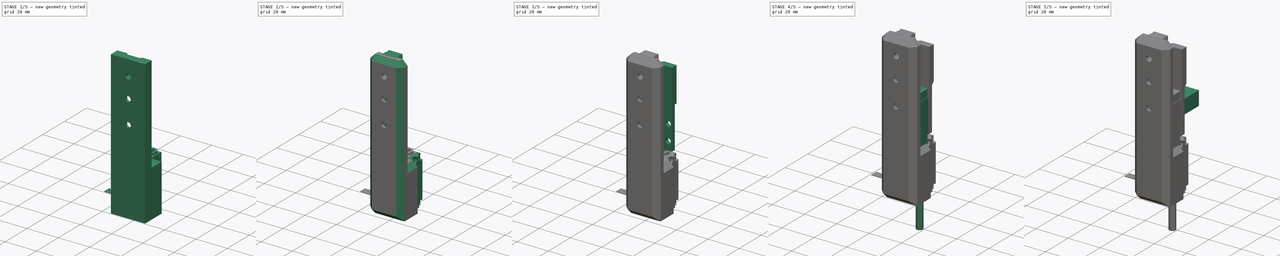
[diagram: build sequence overview — one tinted view per stage of 5, left to right]
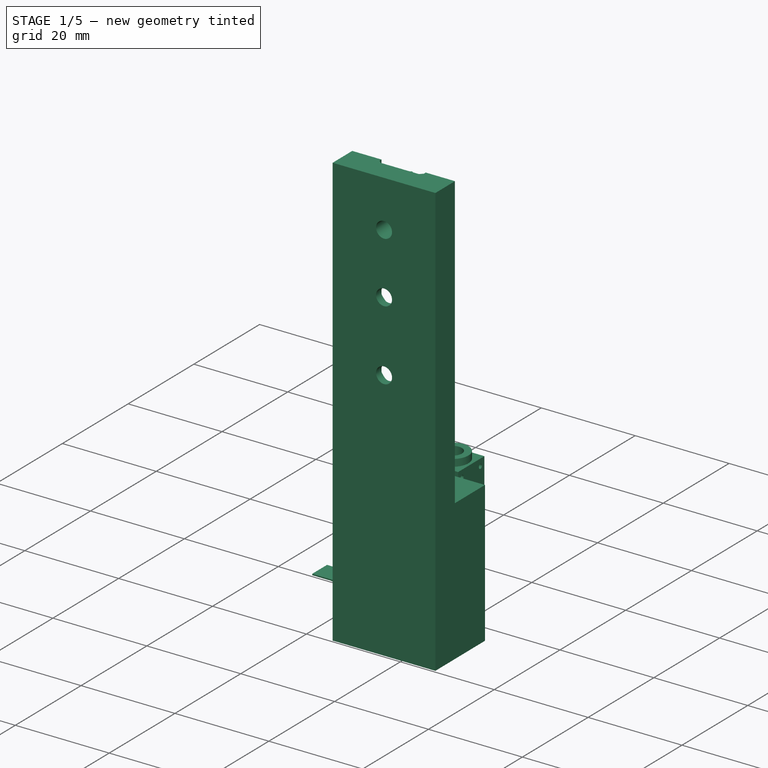
[diagram: stage 1 of 5 — iso view after this stage's code; geometry added in this stage tinted green]
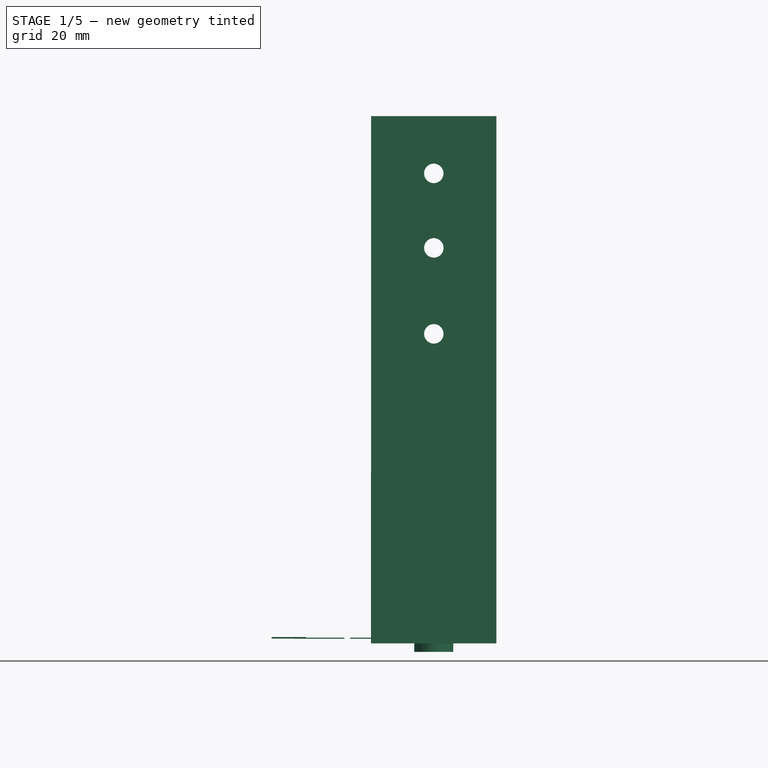
[diagram: stage 1 of 5 — front view after this stage's code; geometry added in this stage tinted green]
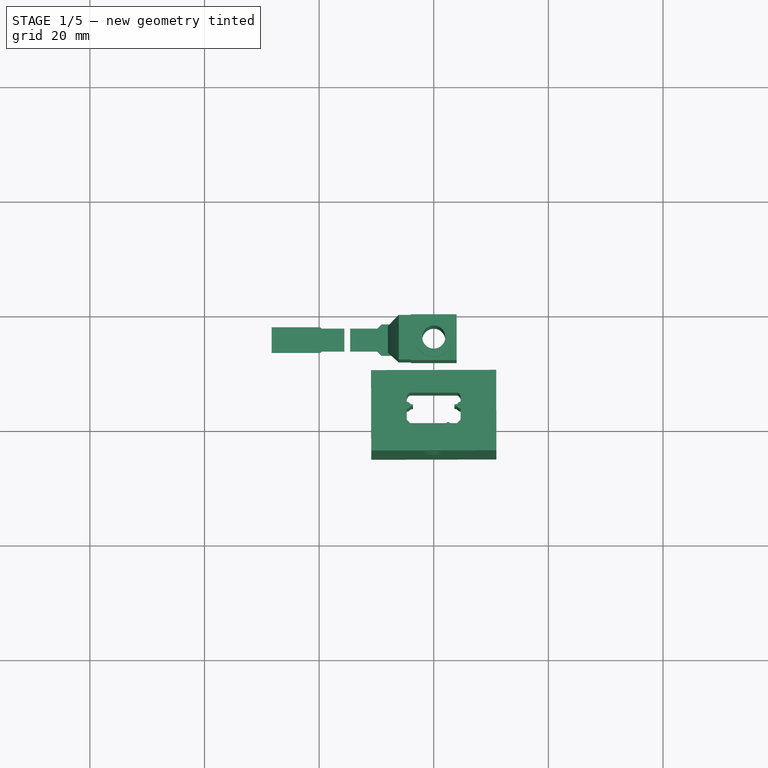
[diagram: stage 1 of 5 — top view after this stage's code; geometry added in this stage tinted green]
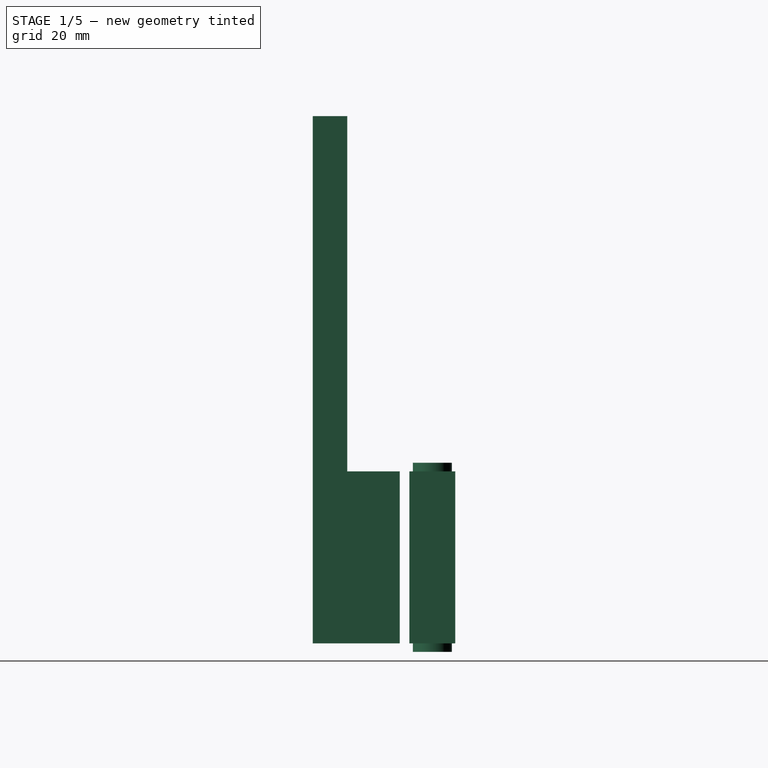
[diagram: stage 1 of 5 — right view after this stage's code; geometry added in this stage tinted green]
FCSTD DOCUMENT  (FreeCAD 0.21R33668 +7 (Git))
Label: 2D_Directional_Fakeout_Motor_Mount
Comment: v3.3 - shifted motor mount over to the left (when looking down the spout) by 0.25mm to correct a slight misaligment, added a little depth to the motor mounting screw countersinks, and enlarged the mot... (+24 chars)
License: All rights reserved
LicenseURL: http://en.wikipedia.org/wiki/All_rights_reserved
objects: Sketcher::SketchObject×15, PartDesign::Pad×8, PartDesign::Pocket×7, Part::Feature×6, Part::FeaturePython×5, PartDesign::Chamfer×4, PartDesign::Body×3, App::Part×3, Spreadsheet::Sheet×1, PartDesign::Fillet×1
note: 69 computed .brp shape members not serialized (recipe doc carries the construction recipe); baked Part::Feature solids carry a one-line shape summary decoded from their .brp

FEATURE [Part::Feature] Part__Feature002  label="LM0830 rod X"
  Placement = pos=(0,15.875,-114.3) rot=(0,1,0;0rad)
  shape: bbox 4.33 x 4.33 x 58 mm, 11 faces (baked)
  expr: .Placement.Base.y = <<ss>>.offAxis_LM0830
FEATURE [Part::Feature] Part__Feature003  label="LM0830 X"
  Placement = pos=(-1.1e-14,15.875,-60.5) rot=(0,0,1;1.5708rad)
  shape: bbox 32.3 x 8 x 33 mm, 102 faces, 2 solids (baked)
  expr: .Placement.Base.y = <<ss>>.offAxis_LM0830
  expr: .Placement.Base.z = -2.375 " - 6.8897 thou
FEATURE [Spreadsheet::Sheet] Spreadsheet  label="ss"
  cells = A2='LM0830 X coord; B2(motorX)==16.5 mm + 29 mm - 7.5 mm + B7 * D7; C2='Cross shaft mount X; D2(crossShaftMountX)==(B7 - 0.5) * D7; E2='CrosslinkerX; F2(crosslinkerX)==(B7 - 0.5) * D7; G2='CarriageX; H2(carriageX)==-27.5 mm + B7 * D7; I2='magnetX; J2(magnetX)==(B7 - 0.5) * D7; A3='LM0830 Y coord; B3(motorY)==-16.5 mm + 29 mm - 7.5 mm + B8 * D7; C3='Cross shaft mount Y; D3(crossShaftMountY)==(B8 - 0.5) * D7; E3='CrosslinkerY; F3(crosslinkerY)==(B8 - 0.5) * D7; G3='CarriageY; H3(carriageY)==F7 + (B8 - 0.5) * D7; I3='magnetY; J3(magnetY)==(B8 - 0.5) * D7; A7='LM0830 X frac; B7=1; C7='LM0830 stroke; D7==15 mm; E7='LM0830 shaft length; F7(shaftLength)==58 mm; A8='LM0830 Y frac; B8=1; A11='Bushing coupler thickness; B11(BushingCouplerThickness)==2 mm; A12='Cross shaft mount thickness; B12(crossShaftMountThickness)==2 mm; A14='Hole tolerance frac; B14(holeToleranceFrac)=1.01; A16='Cage thickness; B16(cageThickness)==6 mm; A17='Cage height; B17(cageHeight)==28 mm; A19='Fit tolerance; B19(tolerance)==0.2 mm; A21='Static mount length; B21(Lstatic)==3.3937 " + 0.2283 "; A22='LM0830 width; B22(W_LM0830)==0.315 "; A23='LM0830 axis offset; B23(offAxis_LM0830)==0.625 "; A24='LM0830 length; B24(L_LM0830)==1.1811 "
FEATURE [Sketcher::SketchObject] Sketch046  label="Carriage cutaway001"
  FullyConstrained = false
  MapMode = 5
  Placement = pos=(-10.922,-0.0263528,0) rot=(0.576422,0.577814,-0.577814;4.1874rad)
  expr: Constraints[10] = 80 mm - 0.7087 "
  expr: Constraints[8] = 1 mm
  expr: Constraints[9] = 10 mm + 0.125 " + 0.125 "
  sketch-geometry (4):
    g0: LineSegment StartX=1 StartY=61.999 StartZ=0 EndX=16.35 EndY=61.999 EndZ=0
    g1: LineSegment StartX=16.35 StartY=61.999 StartZ=0 EndX=16.35 EndY=0 EndZ=0
    g2: LineSegment StartX=16.35 StartY=0 StartZ=0 EndX=1 EndY=0 EndZ=0
    g3: LineSegment StartX=1 StartY=0 StartZ=0 EndX=1 EndY=61.999 EndZ=0
  constraints (12):
    c: Coincident(g0,g1)
    c: Coincident(g1,g2)
    c: Coincident(g2,g3)
    c: Coincident(g3,g0)
    c: Horizontal(g0)
    c: Horizontal(g2)
    c: Vertical(g1)
    c: Vertical(g3)
    c: DistanceX(g2) = 1
    c: DistanceX(g1) = 16.35
    c: DistanceY(g0) = 61.999
    c: DistanceY(g2) = 0
FEATURE [Sketcher::SketchObject] Sketch047  label="Main profile001"
  FullyConstrained = false
  Placement = pos=(0,0,0) rot=(0.999999,0.001206,0;3.14159rad)
  sketch-geometry (48):
    g0: LineSegment StartX=-10.922 StartY=4.9657 StartZ=0 EndX=10.922 EndY=4.9657 EndZ=0
    g1: LineSegment StartX=10.922 StartY=4.9657 StartZ=0 EndX=10.922 EndY=-10.16 EndZ=0
    g2: LineSegment StartX=10.922 StartY=-10.16 StartZ=0 EndX=-10.922 EndY=-10.16 EndZ=0
    g3: LineSegment StartX=-10.922 StartY=-10.16 StartZ=0 EndX=-10.922 EndY=4.9657 EndZ=0
    g4: ArcOfCircle CenterX=2.5 CenterY=0.3 CenterZ=0 NormalX=0 NormalY=0 NormalZ=1 AngleXU=-1e-16 Radius=0.2968 StartAngle=3.78509 EndAngle=5.63968
    g5: ArcOfCircle CenterX=2.1 CenterY=-2.32e-13 CenterZ=0 NormalX=0 NormalY=0 NormalZ=1 AngleXU=-0.927295 Radius=0.2032 StartAngle=1.5708 EndAngle=2.49809
    g6: LineSegment StartX=-4 StartY=0.2032 StartZ=0 EndX=2.1 EndY=0.2032 EndZ=0
    g7: ArcOfCircle CenterX=-4 CenterY=-2.313e-13 CenterZ=0 NormalX=0 NormalY=0 NormalZ=1 AngleXU=-1e-16 Radius=0.2032 StartAngle=1.5708 EndAngle=2.35619
    g8: LineSegment StartX=-4.64368 StartY=-0.356316 StartZ=0 EndX=-4.14368 EndY=0.143684 EndZ=0
    g9: ArcOfCircle CenterX=-4.5 CenterY=-0.5 CenterZ=0 NormalX=0 NormalY=0 NormalZ=1 AngleXU=0.785398 Radius=0.2032 StartAngle=1.5708 EndAngle=2.35619
    g10: LineSegment StartX=-4.7032 StartY=-3.22437 StartZ=0 EndX=-4.7032 EndY=-0.5 EndZ=0
    g11: ArcOfCircle CenterX=-4.5 CenterY=-3.22437 CenterZ=0 NormalX=0 NormalY=0 NormalZ=1 AngleXU=1.5708 Radius=0.2032 StartAngle=1.5708 EndAngle=2.95056
    g12: ArcOfCircle CenterX=-4.65 CenterY=-4 CenterZ=0 NormalX=0 NormalY=0 NormalZ=1 AngleXU=3.14159 Radius=0.5868 StartAngle=3.67105 EndAngle=4.52136
    g13: ArcOfCircle CenterX=-3.96816 CenterY=-3.601 CenterZ=0 NormalX=0 NormalY=0 NormalZ=1 AngleXU=2.10025 Radius=0.2032 StartAngle=1.5708 EndAngle=2.4376
    g14: LineSegment StartX=-3.61313 StartY=-3.86994 StartZ=0 EndX=-4.00345 EndY=-3.80111 EndZ=0
    g15: ArcOfCircle CenterX=-3.75939 CenterY=-4.00161 CenterZ=0 NormalX=0 NormalY=0 NormalZ=1 AngleXU=3.14159 Radius=0.1968 StartAngle=3.79562 EndAngle=3.87457
    g16: LineSegment StartX=-3.6032 StartY=-4.11812 StartZ=0 EndX=-3.6032 EndY=-3.88188 EndZ=0
    g17: ArcOfCircle CenterX=-3.75939 CenterY=-3.99839 CenterZ=0 NormalX=0 NormalY=0 NormalZ=1 AngleXU=3.14159 Radius=0.1968 StartAngle=2.40862 EndAngle=2.48757
    g18: LineSegment StartX=-4.00345 StartY=-4.19889 StartZ=0 EndX=-3.61313 EndY=-4.13006 EndZ=0
    g19: ArcOfCircle CenterX=-3.96816 CenterY=-4.399 CenterZ=0 NormalX=0 NormalY=0 NormalZ=1 AngleXU=0.174533 Radius=0.2032 StartAngle=1.5708 EndAngle=2.4376
    g20: ArcOfCircle CenterX=-4.65 CenterY=-4 CenterZ=0 NormalX=0 NormalY=0 NormalZ=1 AngleXU=3.14159 Radius=0.5868 StartAngle=1.76183 EndAngle=2.61214
    g21: ArcOfCircle CenterX=-4.5 CenterY=-4.77563 CenterZ=0 NormalX=0 NormalY=0 NormalZ=1 AngleXU=0.191033 Radius=0.2032 StartAngle=1.5708 EndAngle=2.95056
    g22: LineSegment StartX=-4.7032 StartY=-5.5 StartZ=0 EndX=-4.7032 EndY=-4.77563 EndZ=0
    g23: ArcOfCircle CenterX=-4.5 CenterY=-5.5 CenterZ=0 NormalX=0 NormalY=0 NormalZ=1 AngleXU=1.5708 Radius=0.2032 StartAngle=1.5708 EndAngle=1.91964
    g24: ArcOfCircle CenterX=-3.56023 CenterY=-5.15819 CenterZ=0 NormalX=0 NormalY=0 NormalZ=1 AngleXU=-1e-16 Radius=1.2032 StartAngle=3.49044 EndAngle=4.14223
    g25: ArcOfCircle CenterX=-4.1 CenterY=-6 CenterZ=0 NormalX=0 NormalY=0 NormalZ=1 AngleXU=2.57143 Radius=0.2032 StartAngle=1.5708 EndAngle=2.14096
    g26: LineSegment StartX=4.1 StartY=-6.2032 StartZ=0 EndX=-4.1 EndY=-6.2032 EndZ=0
    g27: ArcOfCircle CenterX=4.1 CenterY=-6 CenterZ=0 NormalX=0 NormalY=0 NormalZ=1 AngleXU=3.14159 Radius=0.2032 StartAngle=1.5708 EndAngle=2.14096
    g28: ArcOfCircle CenterX=3.56023 CenterY=-5.15819 CenterZ=0 NormalX=0 NormalY=0 NormalZ=1 AngleXU=-1e-16 Radius=1.2032 StartAngle=5.28255 EndAngle=5.93434
    g29: ArcOfCircle CenterX=4.5 CenterY=-5.5 CenterZ=0 NormalX=0 NormalY=0 NormalZ=1 AngleXU=-1.91964 Radius=0.2032 StartAngle=1.5708 EndAngle=1.91964
    g30: LineSegment StartX=4.7032 StartY=-4.77563 StartZ=0 EndX=4.7032 EndY=-5.5 EndZ=0
    g31: ArcOfCircle CenterX=4.5 CenterY=-4.77563 CenterZ=0 NormalX=0 NormalY=0 NormalZ=1 AngleXU=-1.5708 Radius=0.2032 StartAngle=1.5708 EndAngle=2.95056
    g32: ArcOfCircle CenterX=4.65 CenterY=-4 CenterZ=0 NormalX=0 NormalY=0 NormalZ=1 AngleXU=3.14159 Radius=0.5868 StartAngle=0.529455 EndAngle=1.37976
    g33: ArcOfCircle CenterX=3.96816 CenterY=-4.399 CenterZ=0 NormalX=0 NormalY=0 NormalZ=1 AngleXU=-1.04134 Radius=0.2032 StartAngle=1.5708 EndAngle=2.4376
    g34: LineSegment StartX=3.61313 StartY=-4.13006 StartZ=0 EndX=4.00345 EndY=-4.19889 EndZ=0
    g35: ArcOfCircle CenterX=3.75939 CenterY=-3.99839 CenterZ=0 NormalX=0 NormalY=0 NormalZ=1 AngleXU=3.14159 Radius=0.1968 StartAngle=0.654027 EndAngle=0.732978
    g36: LineSegment StartX=3.6032 StartY=-3.88188 StartZ=0 EndX=3.6032 EndY=-4.11812 EndZ=0
    g37: ArcOfCircle CenterX=3.75939 CenterY=-4.00161 CenterZ=0 NormalX=0 NormalY=0 NormalZ=1 AngleXU=3.14159 Radius=0.1968 StartAngle=5.55021 EndAngle=5.62916
    g38: LineSegment StartX=4.00345 StartY=-3.80111 StartZ=0 EndX=3.61313 EndY=-3.86994 EndZ=0
    g39: ArcOfCircle CenterX=3.96816 CenterY=-3.601 CenterZ=0 NormalX=0 NormalY=0 NormalZ=1 AngleXU=-2.96706 Radius=0.2032 StartAngle=1.5708 EndAngle=2.4376
    g40: ArcOfCircle CenterX=4.65 CenterY=-4 CenterZ=0 NormalX=0 NormalY=0 NormalZ=1 AngleXU=3.14159 Radius=0.5868 StartAngle=4.90342 EndAngle=5.75373
    g41: ArcOfCircle CenterX=4.5 CenterY=-3.22437 CenterZ=0 NormalX=0 NormalY=0 NormalZ=1 AngleXU=-2.95056 Radius=0.2032 StartAngle=1.5708 EndAngle=2.95056
    g42: LineSegment StartX=4.7032 StartY=-0.5 StartZ=0 EndX=4.7032 EndY=-3.22437 EndZ=0
    g43: ArcOfCircle CenterX=4.5 CenterY=-0.5 CenterZ=0 NormalX=0 NormalY=0 NormalZ=1 AngleXU=-1.5708 Radius=0.2032 StartAngle=1.5708 EndAngle=2.35619
    g44: LineSegment StartX=4.14368 StartY=0.143684 StartZ=0 EndX=4.64368 EndY=-0.356316 EndZ=0
    g45: ArcOfCircle CenterX=4 CenterY=-2.323e-13 CenterZ=0 NormalX=0 NormalY=0 NormalZ=1 AngleXU=-0.785398 Radius=0.2032 StartAngle=1.5708 EndAngle=2.35619
    g46: LineSegment StartX=2.9 StartY=0.2032 StartZ=0 EndX=4 EndY=0.2032 EndZ=0
    g47: ArcOfCircle CenterX=2.9 CenterY=-2.322e-13 CenterZ=0 NormalX=0 NormalY=0 NormalZ=1 AngleXU=-1e-16 Radius=0.2032 StartAngle=1.5708 EndAngle=2.49809
  constraints (60):
    c: Coincident(g0,g1)
    c: Coincident(g1,g2)
    c: Coincident(g2,g3)
    c: Coincident(g3,g0)
    c: Horizontal(g2)
    c: Vertical(g1)
    c: Vertical(g3)
    c: Symmetric(g0,g0,g-2)
    c: DistanceX(g0,g0) = 21.844
    c: Coincident(g4,g5)
    c: Coincident(g5,g6)
    c: Coincident(g6,g7)
    c: Coincident(g7,g8)
    c: Coincident(g8,g9)
    c: Coincident(g9,g10)
    c: Vertical(g10)
    c: Coincident(g10,g11)
    c: Coincident(g11,g12)
    c: Coincident(g12,g13)
    c: Coincident(g13,g14)
    c: Coincident(g14,g15)
    c: Coincident(g15,g16)
    c: Vertical(g16)
    c: Coincident(g16,g17)
    c: Coincident(g17,g18)
    c: Coincident(g18,g19)
    c: Coincident(g19,g20)
    c: Coincident(g20,g21)
    c: Coincident(g21,g22)
    c: Vertical(g22)
    c: Coincident(g22,g23)
    c: Coincident(g23,g24)
    c: Coincident(g24,g25)
    c: Coincident(g25,g26)
    c: Coincident(g26,g27)
    c: Coincident(g27,g28)
    c: Coincident(g28,g29)
    c: Coincident(g29,g30)
    c: Vertical(g30)
    c: Coincident(g30,g31)
    c: Coincident(g31,g32)
    c: Coincident(g32,g33)
    c: Coincident(g33,g34)
    c: Coincident(g34,g35)
    c: Coincident(g35,g36)
    c: Vertical(g36)
    c: Coincident(g36,g37)
    c: Coincident(g37,g38)
    c: Coincident(g38,g39)
    c: Coincident(g39,g40)
    c: Coincident(g40,g41)
    c: Coincident(g41,g42)
    c: Vertical(g42)
    c: Coincident(g42,g43)
    c: Coincident(g43,g44)
    c: Coincident(g44,g45)
    c: Coincident(g45,g46)
    c: Coincident(g46,g47)
    c: Coincident(g47,g4)
    c: DistanceY(g2) = -10.16
FEATURE [PartDesign::Pad] Pad009
  AllowMultiFace = false
  Direction = (1,1,1)
  Length = 91.9988
  Length2 = 99.9998
  Placement = pos=(0,0,0) rot=(0.999999,0.001206,0;3.14159rad)
  Profile = -> Sketch047
  Type = 0
  expr: Length = <<ss>>.Lstatic
FEATURE [PartDesign::Pocket] Pocket010
  AllowMultiFace = false
  BaseFeature = -> Pad009
  Direction = (1,1,1)
  Length = 5.00126
  Length2 = 99.9998
  Placement = pos=(0,0,0) rot=(0.999999,0.001206,0;3.14159rad)
  Profile = -> Sketch046
  Type = 1
FEATURE [Sketcher::SketchObject] Sketch045  label="Rail mounting holes001"
  FullyConstrained = true
  MapMode = 5
  Placement = pos=(0.000490284,-0.203199,0) rot=(-0.999999,-0.001206,0.001206;1.5708rad)
  Support = -> [Pocket010]
  sketch-geometry (7):
    g0: Circle CenterX=0 CenterY=38 CenterZ=0 NormalX=0 NormalY=0 NormalZ=1 AngleXU=0 Radius=1.7
    g1: Circle CenterX=0 CenterY=23 CenterZ=0 NormalX=0 NormalY=0 NormalZ=1 AngleXU=0 Radius=1.7
    g2: LineSegment StartX=0 StartY=23 StartZ=0 EndX=0 EndY=38 EndZ=0
    g3: LineSegment StartX=0 StartY=41 StartZ=0 EndX=0 EndY=20 EndZ=0
    g4: LineSegment StartX=0 StartY=41 StartZ=0 EndX=0 EndY=38 EndZ=0
    g5: LineSegment StartX=0 StartY=20 StartZ=0 EndX=0 EndY=23 EndZ=0
    g6: Circle CenterX=0 CenterY=10 CenterZ=0 NormalX=0 NormalY=0 NormalZ=1 AngleXU=0 Radius=1.7
  constraints (19):
    c: Equal(g0,g1)
    c: Radius(g0) = 1.7
    c: Vertical(g2)
    c: DistanceY(g2,g2) = 15
    c: Coincident(g1,g2)
    c: Coincident(g0,g2)
    c: DistanceY(g3) = 20
    c: DistanceY(g3) = 41
    c: Vertical(g3)
    c: Coincident(g3,g5)
    c: Equal(g4,g5)
    c: Coincident(g4,g3)
    c: PointOnObject(g5,g3)
    c: Coincident(g0,g4)
    c: Coincident(g1,g5)
    c: DistanceX(g0) = 0
    c: Vertical(g6,g1)
    c: Radius(g6) = 1.7
    c: DistanceY(g-1,g6) = 10
FEATURE [PartDesign::Pocket] Pocket011
  AllowMultiFace = false
  BaseFeature = -> Pocket010
  Direction = (1,1,1)
  Length = 5.00126
  Length2 = 99.9998
  Placement = pos=(0,0,0) rot=(0.999999,0.001206,0;3.14159rad)
  Profile = -> Sketch045
  Type = 1
FEATURE [Sketcher::SketchObject] Sketch044  label="Post mounting countersinks001"
  FullyConstrained = true
  MapMode = 5
  Placement = pos=(0.000490284,-0.203199,0) rot=(-0.999999,-0.001206,0.001206;1.5708rad)
  Support = -> [Pocket011]
  expr: Constraints[2] = 0.35 " / 2
  expr: Constraints[5] = Sketch045.Constraints[1]
  expr: Constraints[6] = Sketch045.Constraints[3]
  expr: Constraints[7] = Sketch045.Constraints[6]
  expr: Constraints[8] = Sketch045.Constraints[7]
  sketch-geometry (7):
    g0: Circle CenterX=0 CenterY=38 CenterZ=0 NormalX=0 NormalY=0 NormalZ=1 AngleXU=0 Radius=4.445
    g1: Circle CenterX=0 CenterY=23 CenterZ=0 NormalX=0 NormalY=0 NormalZ=1 AngleXU=0 Radius=4.445
    g2: Circle CenterX=0 CenterY=38 CenterZ=0 NormalX=0 NormalY=0 NormalZ=1 AngleXU=0 Radius=1.7
    g3: Circle CenterX=0 CenterY=23 CenterZ=0 NormalX=0 NormalY=0 NormalZ=1 AngleXU=0 Radius=1.7
    g4: LineSegment StartX=0 StartY=41 StartZ=0 EndX=0 EndY=20 EndZ=0
    g5: LineSegment StartX=0 StartY=41 StartZ=0 EndX=0 EndY=38 EndZ=0
    g6: LineSegment StartX=0 StartY=20 StartZ=0 EndX=0 EndY=23 EndZ=0
  constraints (18):
    c: Equal(g1,g0)
    c: DistanceX(g0,g1) = 0
    c: Radius(g1) = 4.445
    c: DistanceX(g1) = 0
    c: Equal(g2,g3)
    c: Radius(g2) = 1.7
    c: DistanceY(g3,g2) = 15
    c: DistanceY(g4) = 20
    c: DistanceY(g4) = 41
    c: Vertical(g4)
    c: Coincident(g4,g6)
    c: Equal(g5,g6)
    c: Coincident(g5,g4)
    c: PointOnObject(g6,g4)
    c: Coincident(g2,g5)
    c: Coincident(g3,g6)
    c: Coincident(g1,g3)
    c: Coincident(g2,g0)
FEATURE [PartDesign::Pocket] Pocket012
  AllowMultiFace = false
  BaseFeature = -> Pocket011
  Direction = (1,1,1)
  Length = 3.175
  Length2 = 99.9998
  Placement = pos=(0,0,0) rot=(0.999999,0.001206,0;3.14159rad)
  Profile = -> Sketch044
  Type = 0
FEATURE [Part::FeaturePython] Clone004  label="LM0830 X001"  # Draft clone (typed FeaturePython)
  AttacherType = Attacher::AttachEngine3D
  Fuse = false
  Objects = -> [Part__Feature003]
  Placement = pos=(-1.1e-14,15.875,-60.5) rot=(0,0,1;1.5708rad)
  Scale = (1,1,1)
FEATURE [App::Part] Part  label="2nd stage"
  Group = -> [Clone001,Clone002,Body005,Clone003,Clone,Clone004]
  Origin = -> Origin
  Placement = pos=(30.5,30.2057,-40.9902) rot=(0,1,0;1.5708rad)
FEATURE [Part::Feature] Part__Feature005  label="90107A005_316 Stainless Steel Washer"
  Placement = pos=(0,15.875,-114.3) rot=(0,0,1;0rad)
  shape: bbox 8.578 x 8.578 x 0.7874 mm, 10 faces (baked)
FEATURE [Part::Feature] Part__Feature006  label="96773A622_JIS Steel Pan Head Screws"
  Placement = pos=(0,15.875,-114.7) rot=(0,1,0;3.14159rad)
  shape: bbox 2.49 x 2.49 x 3.632 mm, 55 faces (baked)
FEATURE [App::Part] Part003  label="Moving parts"
  Group = -> [Body001,Part__Feature,Part__Feature005,Part__Feature006]
  Origin = -> Origin005
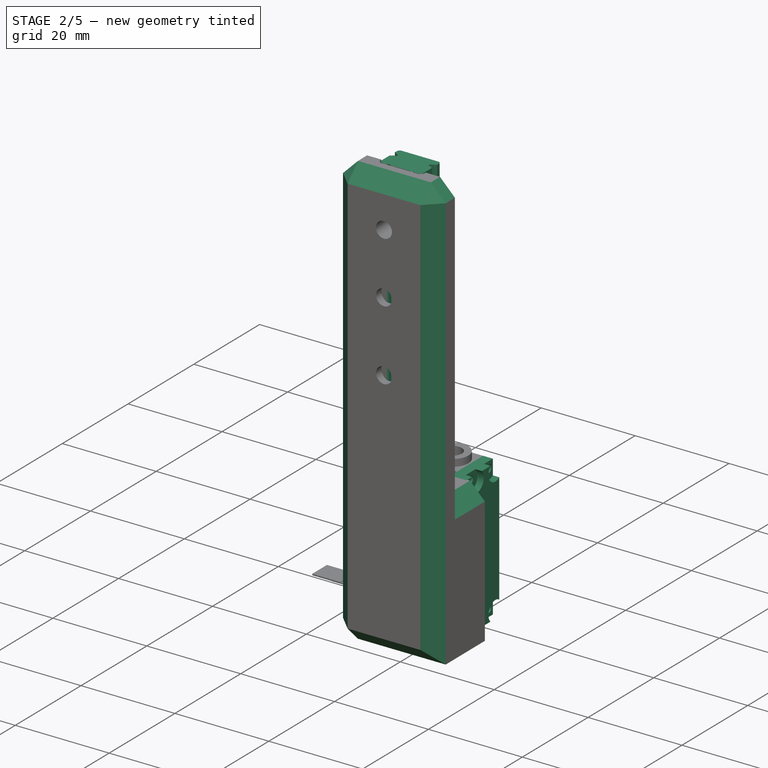
[diagram: stage 2 of 5 — iso view after this stage's code; geometry added in this stage tinted green]
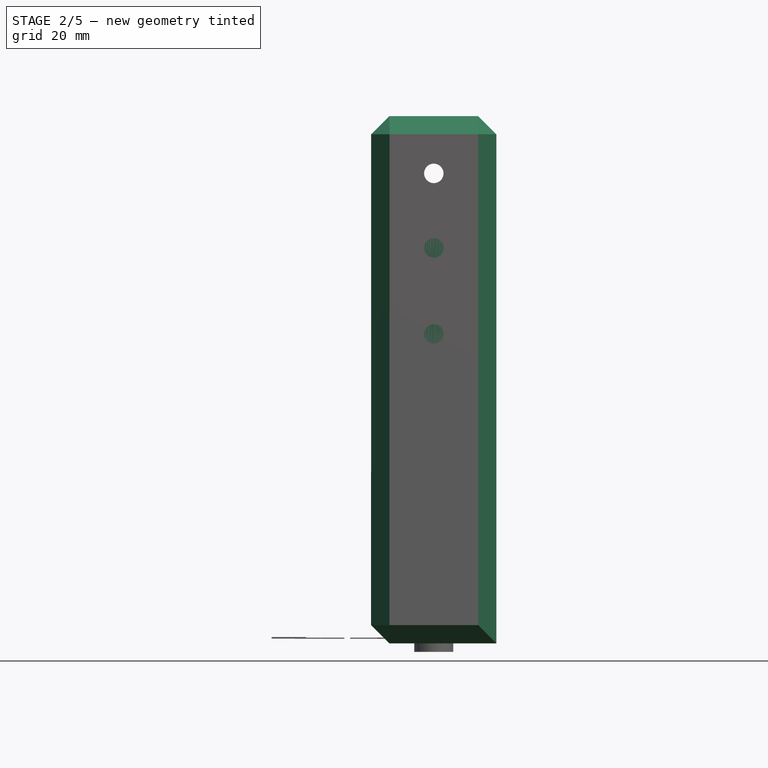
[diagram: stage 2 of 5 — front view after this stage's code; geometry added in this stage tinted green]
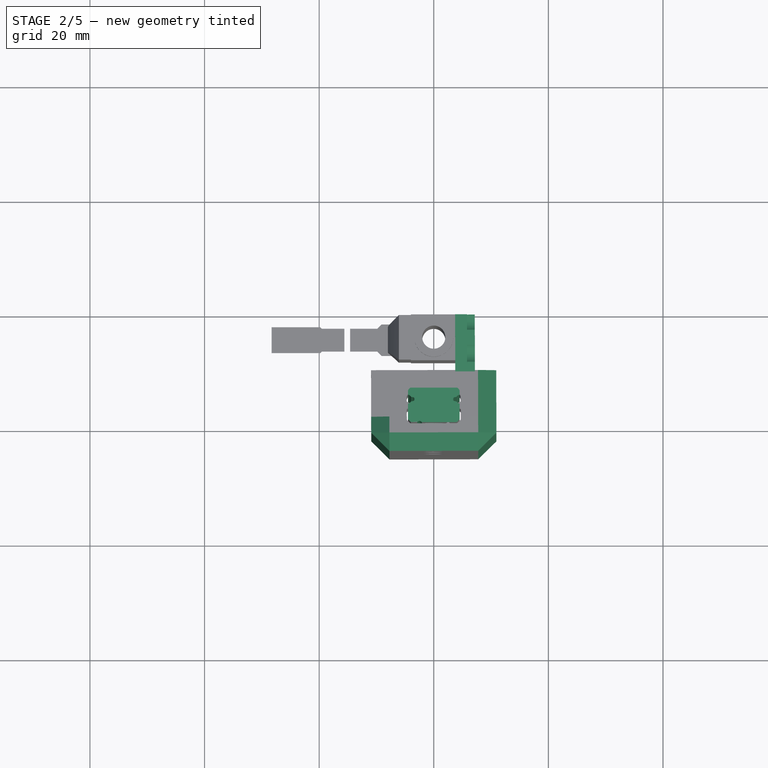
[diagram: stage 2 of 5 — top view after this stage's code; geometry added in this stage tinted green]
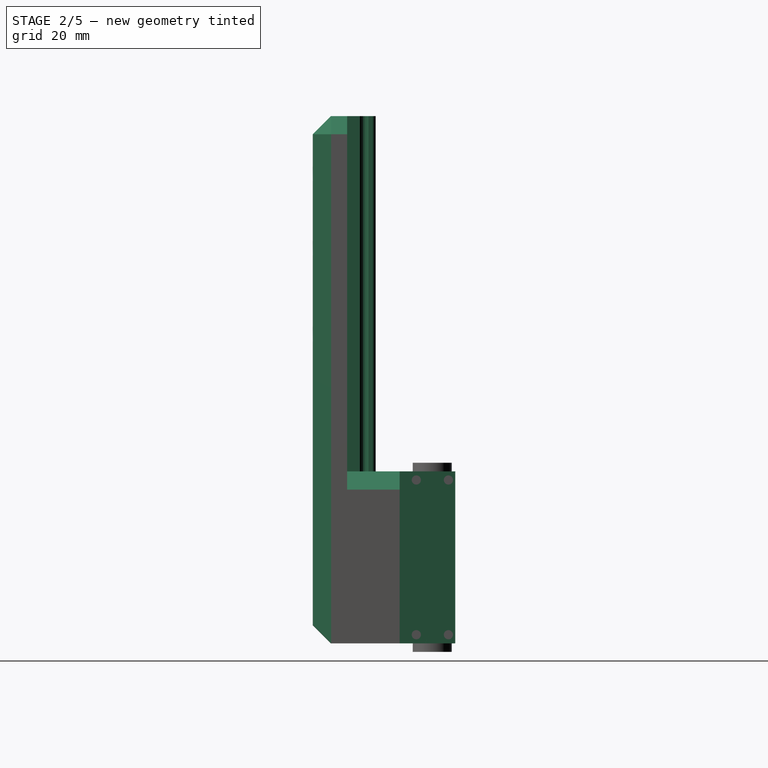
[diagram: stage 2 of 5 — right view after this stage's code; geometry added in this stage tinted green]
FEATURE [Sketcher::SketchObject] Sketch048  label="Servo mount panel"
  FullyConstrained = true
  MapMode = 5
  Placement = pos=(7.19836,0.0263528,0) rot=(-0.578279,0.576885,-0.576885;2.093rad)
  expr: .Placement.Base.x = 0.43 " - (0.2716 " - 0.125 ")
  expr: Constraints[10] = -<<ss>>.offAxis_LM0830 - <<ss>>.W_LM0830 / 2
  expr: Constraints[11] = <<ss>>.L_LM0830
  expr: Constraints[18] = 1.6 mm / 2
  expr: Constraints[19] = 5.6 mm
  expr: Constraints[20] = 27 mm
  expr: Constraints[26] = <<ss>>.W_LM0830
  expr: Constraints[9] = <<ss>>.Lstatic
  sketch-geometry (11):
    g0: LineSegment StartX=-9.906 StartY=91.9988 StartZ=0 EndX=-19.8755 EndY=91.9988 EndZ=0
    g1: LineSegment StartX=-19.8755 StartY=91.9988 StartZ=0 EndX=-19.8755 EndY=61.9989 EndZ=0
    g2: LineSegment StartX=-19.8755 StartY=61.9989 StartZ=0 EndX=-9.906 EndY=61.9989 EndZ=0
    g3: LineSegment StartX=-9.906 StartY=61.9989 StartZ=0 EndX=-9.906 EndY=91.9988 EndZ=0
    g4: Circle CenterX=-18.675 CenterY=90.4988 CenterZ=0 NormalX=0 NormalY=0 NormalZ=1 AngleXU=0 Radius=0.8
    g5: Circle CenterX=-13.075 CenterY=90.4988 CenterZ=0 NormalX=0 NormalY=0 NormalZ=1 AngleXU=0 Radius=0.8
    g6: Circle CenterX=-18.675 CenterY=63.4988 CenterZ=0 NormalX=0 NormalY=0 NormalZ=1 AngleXU=0 Radius=0.8
    g7: Circle CenterX=-13.075 CenterY=63.4988 CenterZ=0 NormalX=0 NormalY=0 NormalZ=1 AngleXU=0 Radius=0.8
    g8: LineSegment StartX=-15.875 StartY=91.9988 StartZ=0 EndX=-15.875 EndY=61.9989 EndZ=0
    g9: LineSegment StartX=-19.8755 StartY=76.9988 StartZ=0 EndX=-9.906 EndY=76.9988 EndZ=0
    g10: LineSegment StartX=-11.8745 StartY=91.9988 StartZ=0 EndX=-11.8745 EndY=61.9989 EndZ=0
  constraints (32):
    c: Coincident(g0,g1)
    c: Coincident(g1,g2)
    c: Coincident(g2,g3)
    c: Coincident(g3,g0)
    c: Horizontal(g0)
    c: Horizontal(g2)
    c: Vertical(g1)
    c: Vertical(g3)
    c: DistanceX(g0) = -9.906
    c: DistanceY(g0) = 91.9988
    c: DistanceX(g0) = -19.8755
    c: DistanceY(g1,g1) = 29.9999
    c: Equal(g6,g7)
    c: Equal(g7,g5)
    c: Equal(g5,g4)
    c: DistanceY(g5,g4) = 0
    c: DistanceY(g7,g6) = 0
    c: DistanceX(g5,g7) = 0
    c: Radius(g4) = 0.8
    c: DistanceX(g4,g5) = 5.6
    c: DistanceY(g6,g4) = 27
    c: PointOnObject(g9,g3)
    c: PointOnObject(g9,g1)
    c: PointOnObject(g8,g2)
    c: PointOnObject(g8,g0)
    c: PointOnObject(g10,g2)
    c: DistanceX(g1,g10) = 8.001
    c: Vertical(g10)
    c: Symmetric(g10,g0,g8)
    c: Symmetric(g0,g1,g9)
    c: Symmetric(g4,g5,g8)
    c: Symmetric(g4,g6,g9)
FEATURE [PartDesign::Pad] Pad010
  AllowMultiFace = false
  BaseFeature = -> Pocket012
  Direction = (1,1,1)
  Length = 3.425
  Length2 = 99.9998
  Placement = pos=(0,0,0) rot=(0.999999,0.001206,0;3.14159rad)
  Profile = -> Sketch048
  Reversed = true
  Type = 0
  expr: Length = 3.175 mm + 0.25 mm
FEATURE [Sketcher::SketchObject] Sketch049  label="Servo mount countersinks"
  FullyConstrained = true
  MapMode = 5
  Placement = pos=(7.19838,0.0173874,1.40879e-05) rot=(-0.57828,0.576884,-0.576886;2.093rad)
  Support = -> [Pad010]
  expr: .Placement.Base.x = 0.43 " - (0.2716 " - 0.125 ")
  expr: Constraints[10] = -<<ss>>.offAxis_LM0830 - <<ss>>.W_LM0830 / 2
  expr: Constraints[11] = <<ss>>.L_LM0830
  expr: Constraints[18] = 1.4 mm * 3 / 2
  expr: Constraints[19] = 5.6 mm
  expr: Constraints[20] = 27 mm
  expr: Constraints[26] = <<ss>>.W_LM0830
  expr: Constraints[9] = <<ss>>.Lstatic
  sketch-geometry (11):
    g0: LineSegment StartX=-9.906 StartY=91.9988 StartZ=0 EndX=-19.8755 EndY=91.9988 EndZ=0
    g1: LineSegment StartX=-19.8755 StartY=91.9988 StartZ=0 EndX=-19.8755 EndY=61.9989 EndZ=0
    g2: LineSegment StartX=-19.8755 StartY=61.9989 StartZ=0 EndX=-9.906 EndY=61.9989 EndZ=0
    g3: LineSegment StartX=-9.906 StartY=61.9989 StartZ=0 EndX=-9.906 EndY=91.9988 EndZ=0
    g4: Circle CenterX=-18.675 CenterY=90.4988 CenterZ=0 NormalX=0 NormalY=0 NormalZ=1 AngleXU=0 Radius=2.1
    g5: Circle CenterX=-13.075 CenterY=90.4988 CenterZ=0 NormalX=0 NormalY=0 NormalZ=1 AngleXU=0 Radius=2.1
    g6: Circle CenterX=-18.675 CenterY=63.4988 CenterZ=0 NormalX=0 NormalY=0 NormalZ=1 AngleXU=0 Radius=2.1
    g7: Circle CenterX=-13.075 CenterY=63.4988 CenterZ=0 NormalX=0 NormalY=0 NormalZ=1 AngleXU=0 Radius=2.1
    g8: LineSegment StartX=-15.875 StartY=91.9988 StartZ=0 EndX=-15.875 EndY=61.9989 EndZ=0
    g9: LineSegment StartX=-19.8755 StartY=76.9988 StartZ=0 EndX=-9.906 EndY=76.9988 EndZ=0
    g10: LineSegment StartX=-11.8745 StartY=91.9988 StartZ=0 EndX=-11.8745 EndY=61.9989 EndZ=0
  constraints (32):
    c: Coincident(g0,g1)
    c: Coincident(g1,g2)
    c: Coincident(g2,g3)
    c: Coincident(g3,g0)
    c: Horizontal(g0)
    c: Horizontal(g2)
    c: Vertical(g1)
    c: Vertical(g3)
    c: DistanceX(g0) = -9.906
    c: DistanceY(g0) = 91.9988
    c: DistanceX(g0) = -19.8755
    c: DistanceY(g1,g1) = 29.9999
    c: Equal(g6,g7)
    c: Equal(g7,g5)
    c: Equal(g5,g4)
    c: DistanceY(g5,g4) = 0
    c: DistanceY(g7,g6) = 0
    c: DistanceX(g5,g7) = 0
    c: Radius(g4) = 2.1
    c: DistanceX(g4,g5) = 5.6
    c: DistanceY(g6,g4) = 27
    c: PointOnObject(g9,g3)
    c: PointOnObject(g9,g1)
    c: PointOnObject(g8,g2)
    c: PointOnObject(g8,g0)
    c: PointOnObject(g10,g2)
    c: DistanceX(g1,g10) = 8.001
    c: Vertical(g10)
    c: Symmetric(g10,g0,g8)
    c: Symmetric(g0,g1,g9)
    c: Symmetric(g4,g5,g8)
    c: Symmetric(g4,g6,g9)
FEATURE [PartDesign::Pocket] Pocket013
  AllowMultiFace = false
  BaseFeature = -> Pad010
  Direction = (1,1,1)
  Length = 1.3636
  Length2 = 99.9998
  Placement = pos=(0,0,0) rot=(0.999999,0.001206,0;3.14159rad)
  Profile = -> Sketch049
  Type = 0
  expr: Length = 0.8636 mm + 0.25 mm + 0.25 mm
FEATURE [Sketcher::SketchObject] Sketch050  label="Rod mount"
  FullyConstrained = true
  MapMode = 5
  Placement = pos=(-1e-15,10,-56.3983) rot=(0,1,0;3.14159rad)
  expr: Constraints[10] = 2 mm
  expr: Constraints[16] = 1.8 mm / 2
  expr: Constraints[9] = 0.2313 "
  sketch-geometry (7):
    g0: LineSegment StartX=-3.175 StartY=2.54 StartZ=0 EndX=-3.175 EndY=0 EndZ=0
    g1: LineSegment StartX=-3.175 StartY=0 StartZ=0 EndX=3.175 EndY=0 EndZ=0
    g2: LineSegment StartX=3.175 StartY=0 StartZ=0 EndX=3.175 EndY=2.54 EndZ=0
    g3: LineSegment StartX=3.175 StartY=2.54 StartZ=0 EndX=1.90374 EndY=6.48802 EndZ=0
    g4: ArcOfCircle CenterX=1e-16 CenterY=5.87502 CenterZ=0 NormalX=0 NormalY=0 NormalZ=1 AngleXU=0 Radius=2 StartAngle=0.311515 EndAngle=2.83008
    g5: LineSegment StartX=-1.90374 StartY=6.48802 StartZ=0 EndX=-3.175 EndY=2.54 EndZ=0
    g6: Circle CenterX=1e-16 CenterY=5.87502 CenterZ=0 NormalX=0 NormalY=0 NormalZ=1 AngleXU=0 Radius=0.9
  constraints (17):
    c: Coincident(g0,g1)
    c: Coincident(g1,g2)
    c: Coincident(g2,g3)
    c: Coincident(g0,g5)
    c: Symmetric(g0,g2,g-2)
    c: Symmetric(g0,g1,g-2)
    c: Vertical(g0)
    c: DistanceY(g0) = 0
    c: DistanceY(g0) = 2.54
    c: DistanceY(g4) = 5.87502
    c: Radius(g4) = 2
    c: Symmetric(g4,g3,g-2)
    c: Tangent(g4,g5) = -1.5708
    c: Coincident(g3,g4)
    c: DistanceX(g1,g1) = 6.35
    c: Coincident(g4,g6)
    c: Radius(g6) = 0.9
FEATURE [Part::Feature] Part__Feature001  label="Rail - 6725K31"
  Placement = pos=(0,0,0) rot=(0,1,0;1.5708rad)
  shape: bbox 9 x 6 x 80 mm, 56 faces (baked)
FEATURE [PartDesign::Chamfer] Chamfer003  label="Chamfer004"
  Angle = 45
  Base = -> Pocket013 [Edge4,Edge2,Edge1,Edge3,Edge10,Edge28,Edge76,Edge11]
  BaseFeature = -> Pocket013
  ChamferType = 0
  FlipDirection = false
  Placement = pos=(0,0,0) rot=(0.999999,0.001206,0;3.14159rad)
  Size = 3.175
  Size2 = 1
  SupportTransform = false
  UseAllEdges = false
FEATURE [PartDesign::Body] Body005  label="Linear actuator dynamic mount"
  Group = -> [Sketch052,Pad012,Sketch037,Sketch038,Pad004,Sketch040,Pocket005,Pocket006,Chamfer,Sketch053,Pad013,Chamfer002,Chamfer004]
  Origin = -> Origin012
  Tip = -> Chamfer004
FEATURE [Part::FeaturePython] Clone003  label="Rail - 6725K032"  # Draft clone (typed FeaturePython)
  AttacherType = Attacher::AttachEngine3D
  Fuse = false
  Objects = -> [Part__Feature001]
  Placement = pos=(0,0,0) rot=(0,1,0;1.5708rad)
  Scale = (1,1,1)
FEATURE [Part::FeaturePython] Clone  label="Linear actuator static mount001"  # Draft clone (typed FeaturePython)
  AttacherType = Attacher::AttachEngine3D
  Fuse = false
  Objects = -> [Body004]
  Scale = (1,1,1)
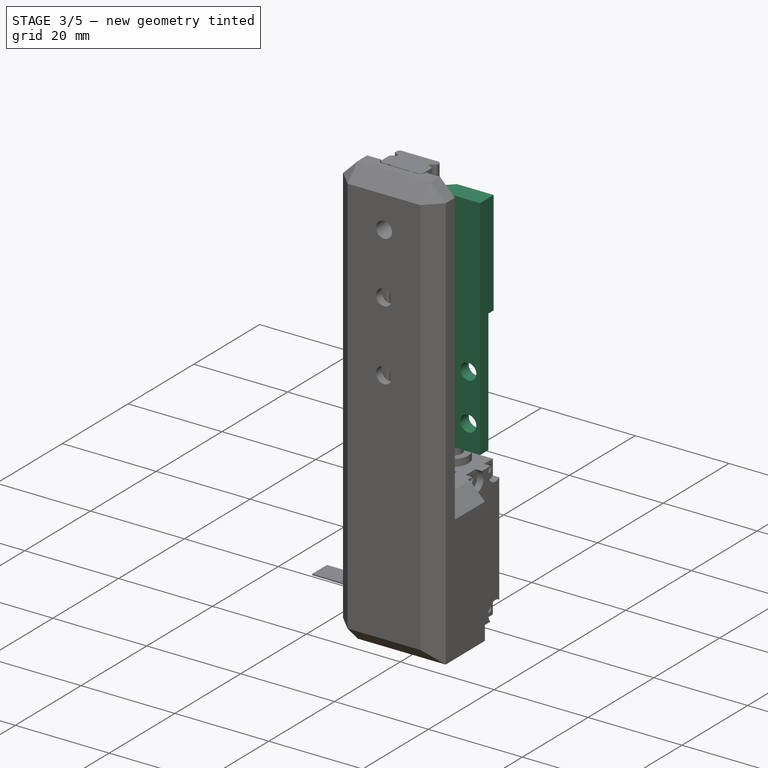
[diagram: stage 3 of 5 — iso view after this stage's code; geometry added in this stage tinted green]
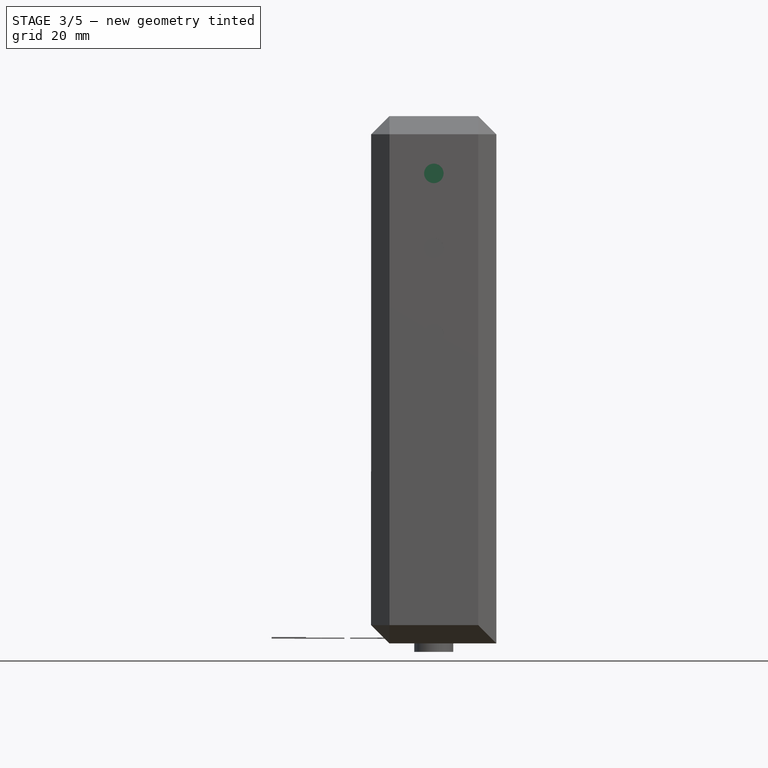
[diagram: stage 3 of 5 — front view after this stage's code; geometry added in this stage tinted green]
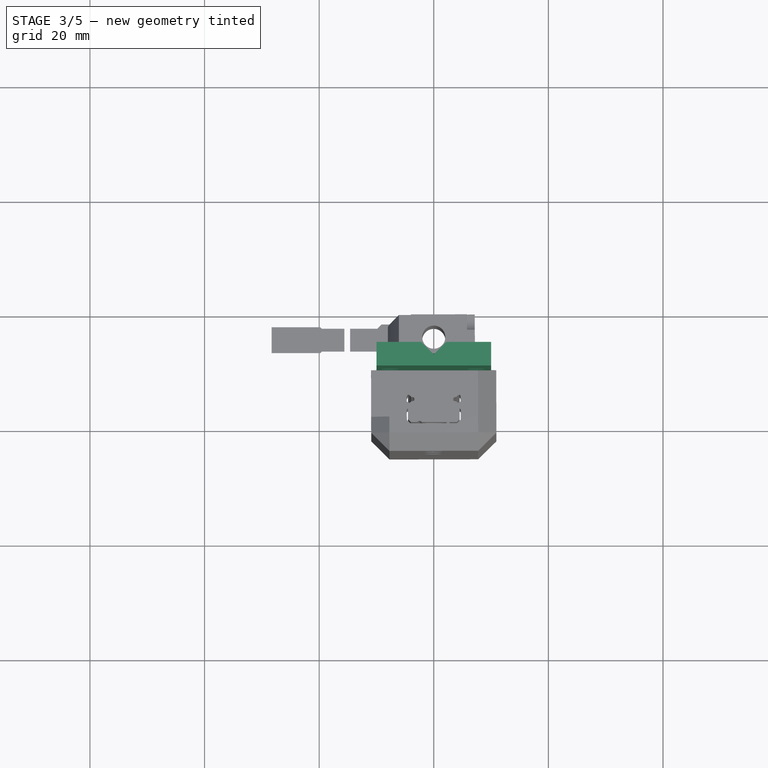
[diagram: stage 3 of 5 — top view after this stage's code; geometry added in this stage tinted green]
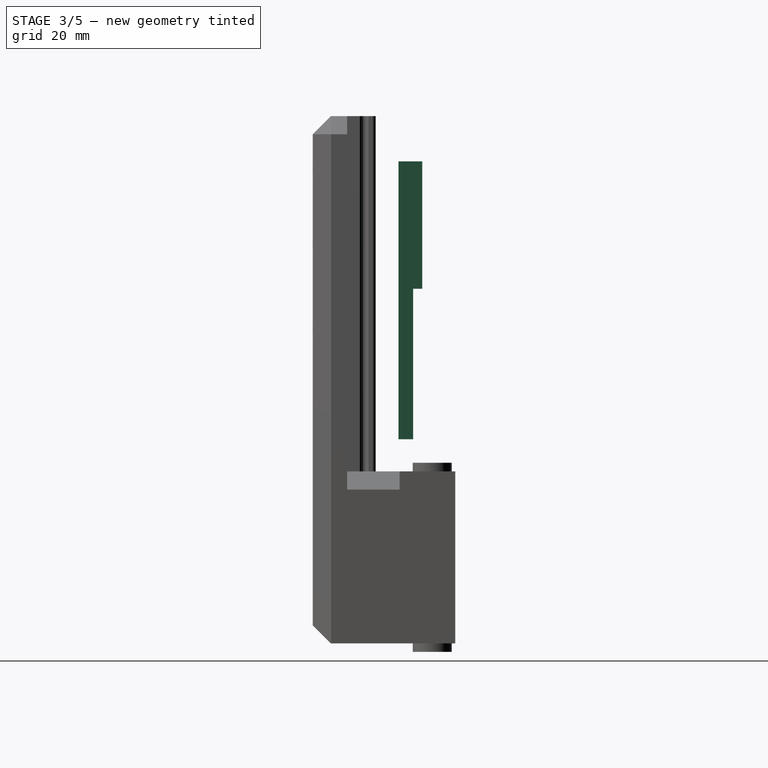
[diagram: stage 3 of 5 — right view after this stage's code; geometry added in this stage tinted green]
FEATURE [Sketcher::SketchObject] Sketch052  label="Spout mount main profile002"
  FullyConstrained = false
  MapMode = 5
  Placement = pos=(0,10,-45.9996) rot=(0,0.707107,0.707107;3.14159rad)
  expr: Constraints[10] = 3.4 mm / 2
  expr: Constraints[14] = 15 mm
  expr: Constraints[16] = 10 mm
  expr: Constraints[17] = 5.4 mm
  sketch-geometry (8):
    g0: LineSegment StartX=-9.99998 StartY=38.1 StartZ=0 EndX=9.99998 EndY=38.1 EndZ=0
    g1: LineSegment StartX=9.99998 StartY=38.1 StartZ=0 EndX=9.99998 EndY=-10.3988 EndZ=0
    g2: LineSegment StartX=9.99998 StartY=-10.3988 StartZ=0 EndX=-9.99998 EndY=-10.3988 EndZ=0
    g3: LineSegment StartX=-9.99998 StartY=-10.3988 StartZ=0 EndX=-9.99998 EndY=38.1 EndZ=0
    g4: Circle CenterX=-7.5 CenterY=5.00124 CenterZ=0 NormalX=0 NormalY=0 NormalZ=1 AngleXU=0 Radius=1.7
    g5: Circle CenterX=-7.5 CenterY=-4.99876 CenterZ=0 NormalX=0 NormalY=0 NormalZ=1 AngleXU=0 Radius=1.7
    g6: Circle CenterX=7.5 CenterY=-4.99876 CenterZ=0 NormalX=0 NormalY=0 NormalZ=1 AngleXU=0 Radius=1.7
    g7: Circle CenterX=7.5 CenterY=5.00124 CenterZ=0 NormalX=0 NormalY=0 NormalZ=1 AngleXU=0 Radius=1.7
  constraints (21):
    c: Coincident(g0,g1)
    c: Coincident(g1,g2)
    c: Coincident(g2,g3)
    c: Coincident(g3,g0)
    c: Horizontal(g2)
    c: Vertical(g1)
    c: Vertical(g3)
    c: DistanceX(g0,g0) = 20
    c: Symmetric(g0,g0,g-2)
    c: DistanceY(g2) = -10.3988
    c: Radius(g4) = 1.7
    c: Equal(g4,g5) = 1.7
    c: Symmetric(g4,g7,g-2)
    c: Symmetric(g5,g6,g-2)
    c: DistanceX(g5,g6) = 15
    c: DistanceX(g5,g4) = 0
    c: DistanceY(g5,g4) = 10
    c: DistanceY(g2,g5) = 5.4
    c: Equal(g4,g7)
    c: Equal(g7,g6)
    c: DistanceY(g0) = 38.1
FEATURE [PartDesign::Pad] Pad012
  AllowMultiFace = false
  Direction = (1,1,1)
  Length = 2.54
  Length2 = 99.9998
  Placement = pos=(0,10,-45.9996) rot=(0,0.707107,0.707107;3.14159rad)
  Profile = -> Sketch052
  Type = 0
FEATURE [Sketcher::SketchObject] Sketch038  label="Tube thickness"
  FullyConstrained = false
  MapMode = 5
  Placement = pos=(0,12.54,-45.9996) rot=(0,0.707107,0.707107;3.14159rad)
  Support = -> [Pad012]
  expr: Constraints[8] = 20 mm
  sketch-geometry (4):
    g0: LineSegment StartX=-10 StartY=38.1 StartZ=0 EndX=10 EndY=38.1 EndZ=0
    g1: LineSegment StartX=10 StartY=38.1 StartZ=0 EndX=10 EndY=15.875 EndZ=0
    g2: LineSegment StartX=10 StartY=15.875 StartZ=0 EndX=-10 EndY=15.875 EndZ=0
    g3: LineSegment StartX=-10 StartY=15.875 StartZ=0 EndX=-10 EndY=38.1 EndZ=0
  constraints (11):
    c: Coincident(g0,g1)
    c: Coincident(g1,g2)
    c: Coincident(g2,g3)
    c: Coincident(g3,g0)
    c: Horizontal(g2)
    c: Vertical(g1)
    c: Vertical(g3)
    c: DistanceY(g0) = 38.1
    c: DistanceX(g0,g0) = 20
    c: Symmetric(g0,g0,g-2)
    c: DistanceY(g3,g3) = 22.225
FEATURE [PartDesign::Pad] Pad004
  AllowMultiFace = false
  BaseFeature = -> Pad012
  Direction = (1,1,1)
  Length = 1.5875
  Length2 = 99.9998
  Placement = pos=(0,10,-45.9996) rot=(0,0.707107,0.707107;3.14159rad)
  Profile = -> Sketch038
  Type = 0
  expr: Length = 0.125 " / 2
FEATURE [Sketcher::SketchObject] Sketch040  label="Spout groove"
  FullyConstrained = false
  MapMode = 5
  Placement = pos=(3.4e-15,10,-7.89957) rot=(0,0,1;0rad)
  Support = -> [Pad004]
  expr: Constraints[6] = 0.1 " + 0.125 " / 2
  sketch-geometry (3):
    g0: LineSegment StartX=-2.18486 StartY=4.1275 StartZ=0 EndX=-4e-16 EndY=1.94264 EndZ=0
    g1: LineSegment StartX=-4e-16 StartY=1.94264 StartZ=0 EndX=2.18486 EndY=4.1275 EndZ=0
    g2: LineSegment StartX=2.18486 StartY=4.1275 StartZ=0 EndX=-2.18486 EndY=4.1275 EndZ=0
  constraints (8):
    c: Coincident(g0,g1)
    c: Coincident(g1,g2)
    c: Coincident(g0,g2)
    c: Symmetric(g0,g1,g-2)
    c: Equal(g0,g1)
    c: Angle(g0,g-2) = 2.35619
    c: DistanceY(g0) = 4.1275
    c: DistanceY(g0,g1) = 2.18486
FEATURE [PartDesign::Pocket] Pocket005
  AllowMultiFace = false
  BaseFeature = -> Pad004
  Direction = (1,1,1)
  Length = 12.7
  Length2 = 99.9998
  Placement = pos=(0,10,-45.9996) rot=(0,0.707107,0.707107;3.14159rad)
  Profile = -> Sketch040
  Type = 0
FEATURE [Sketcher::SketchObject] Sketch037  label="Tube groove"
  FullyConstrained = false
  MapMode = 5
  Placement = pos=(0,10,-20.5996) rot=(0,0,1;0rad)
  Support = -> [Pocket005]
  expr: Constraints[6] = 0.16 " + 0.0060182 " * 2
  expr: Constraints[7] = 1.81 mm / 2
  expr: Constraints[9] = 0.125 " / 2 + 0.1 "
  sketch-geometry (4):
    g0: LineSegment StartX=-2.18486 StartY=3.2225 StartZ=0 EndX=-2.18486 EndY=4.1275 EndZ=0
    g1: LineSegment StartX=-2.18486 StartY=4.1275 StartZ=0 EndX=2.18486 EndY=4.1275 EndZ=0
    g2: LineSegment StartX=2.18486 StartY=4.1275 StartZ=0 EndX=2.18486 EndY=3.2225 EndZ=0
    g3: ArcOfCircle CenterX=1.6e-15 CenterY=3.2225 CenterZ=0 NormalX=0 NormalY=0 NormalZ=1 AngleXU=0 Radius=2.18486 StartAngle=3.14159 EndAngle=6.28319
  constraints (10):
    c: Coincident(g0,g1)
    c: Coincident(g1,g2)
    c: DistanceY(g0,g3) = 0
    c: Vertical(g2)
    c: Tangent(g0,g3) = 1.5708
    c: Tangent(g3,g2) = 1.5708
    c: DistanceX(g1,g1) = 4.36972
    c: DistanceY(g0,g0) = 0.905
    c: Symmetric(g0,g1,g-2)
    c: DistanceY(g0) = 4.1275
FEATURE [PartDesign::Pocket] Pocket006
  AllowMultiFace = false
  BaseFeature = -> Pocket005
  Direction = (1,1,1)
  Length = 9.525
  Length2 = 99.9998
  Placement = pos=(0,10,-45.9996) rot=(0,0.707107,0.707107;3.14159rad)
  Profile = -> Sketch037
  Type = 0
FEATURE [PartDesign::Chamfer] Chamfer
  Angle = 45
  Base = -> Pocket006 [Edge46]
  BaseFeature = -> Pocket006
  ChamferType = 0
  FlipDirection = false
  Placement = pos=(0,10,-45.9996) rot=(0,0.707107,0.707107;3.14159rad)
  Size = 1.4986
  Size2 = 1
  SupportTransform = false
  UseAllEdges = false
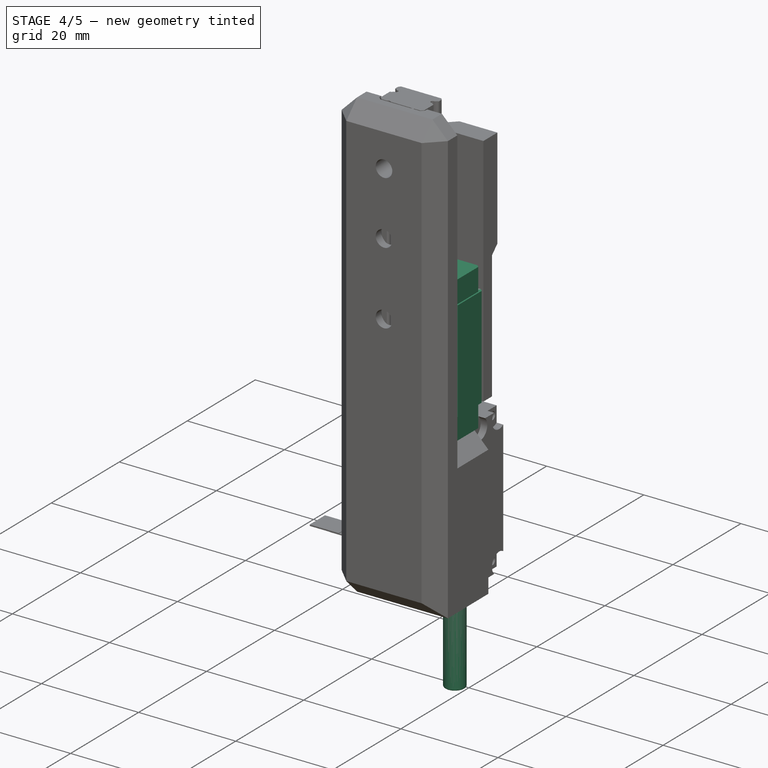
[diagram: stage 4 of 5 — iso view after this stage's code; geometry added in this stage tinted green]
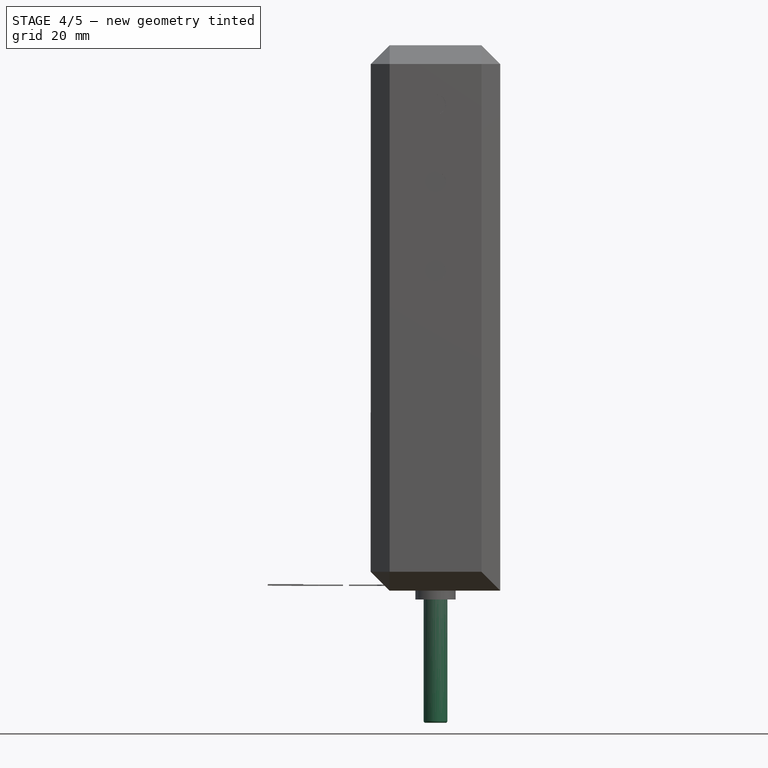
[diagram: stage 4 of 5 — front view after this stage's code; geometry added in this stage tinted green]
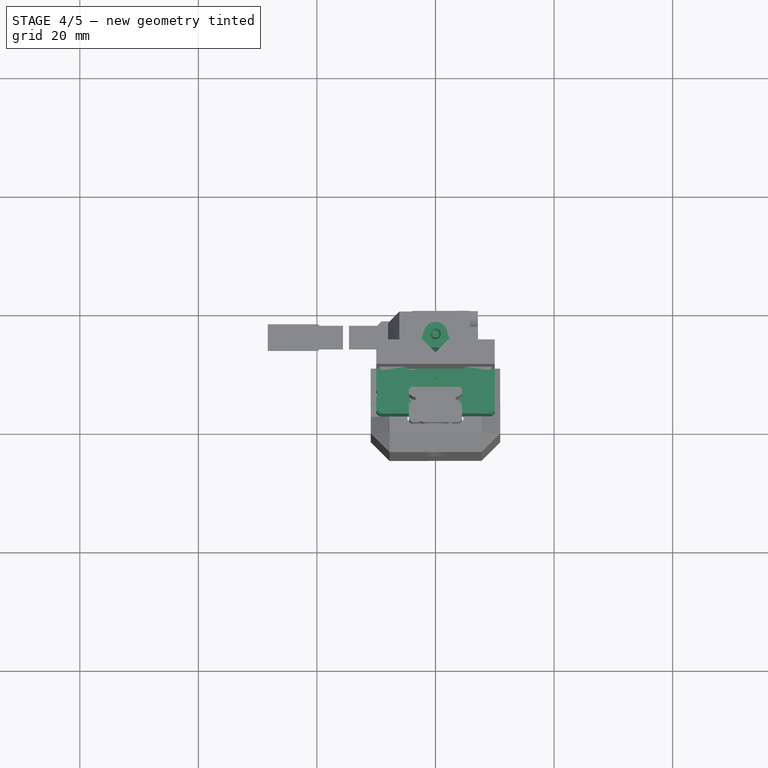
[diagram: stage 4 of 5 — top view after this stage's code; geometry added in this stage tinted green]
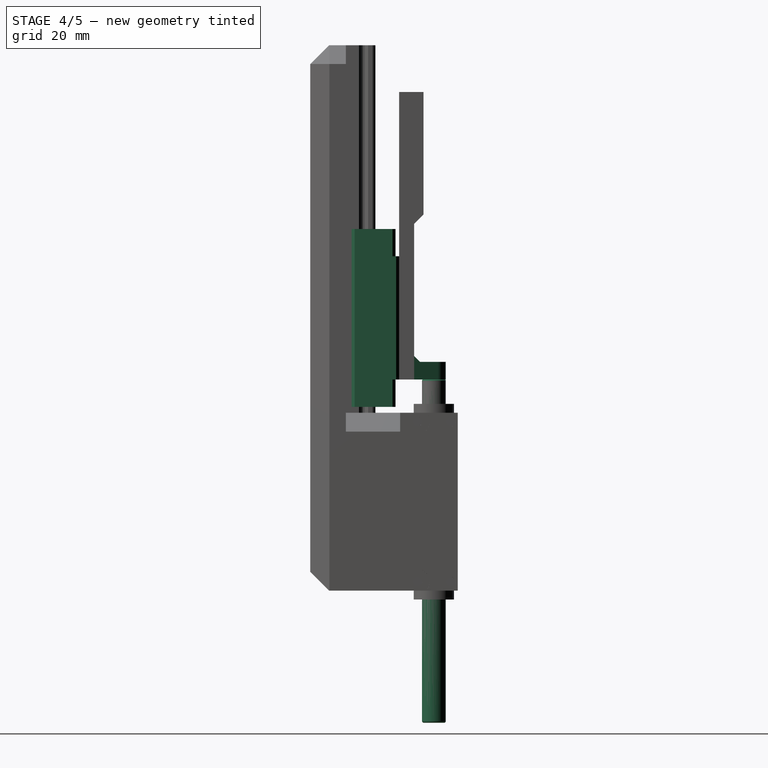
[diagram: stage 4 of 5 — right view after this stage's code; geometry added in this stage tinted green]
FEATURE [PartDesign::Body] Body001  label="Cross motor mount connector"
  Group = -> [Sketch036,Pad003,Sketch050,Sketch051,Pad,Pad011,Sketch,Pocket,Fillet]
  Origin = -> Origin003
  Tip = -> Fillet
FEATURE [Part::FeaturePython] Clone001  label="LM0830 rod X001"  # Draft clone (typed FeaturePython)
  AttacherType = Attacher::AttachEngine3D
  Fuse = false
  Objects = -> [Part__Feature002]
  Placement = pos=(0,15.875,-114.3) rot=(0,1,0;0rad)
  Scale = (1,1,1)
FEATURE [Part::FeaturePython] Clone002  label="Carriage - 8438K004"  # Draft clone (typed FeaturePython)
  AttacherType = Attacher::AttachEngine3D
  Fuse = false
  Objects = -> [Part__Feature]
  Placement = pos=(0,0,-45.9996) rot=(0,0,1;0rad)
  Scale = (1,1,1)
FEATURE [Sketcher::SketchObject] Sketch053  label="Rod mount001"
  FullyConstrained = false
  MapMode = 5
  Placement = pos=(-9e-16,10,-56.3983) rot=(0,1,0;3.14159rad)
  Support = -> [Chamfer]
  expr: Constraints[10] = 2 mm
  expr: Constraints[16] = 1.8 mm / 2
  expr: Constraints[9] = 0.2313 "
  sketch-geometry (7):
    g0: LineSegment StartX=-3.175 StartY=2.54 StartZ=0 EndX=-3.175 EndY=0 EndZ=0
    g1: LineSegment StartX=-3.175 StartY=0 StartZ=0 EndX=3.175 EndY=0 EndZ=0
    g2: LineSegment StartX=3.175 StartY=0 StartZ=0 EndX=3.175 EndY=2.54 EndZ=0
    g3: LineSegment StartX=3.175 StartY=2.54 StartZ=0 EndX=1.90374 EndY=6.48802 EndZ=0
    g4: ArcOfCircle CenterX=1e-16 CenterY=5.87502 CenterZ=0 NormalX=0 NormalY=0 NormalZ=1 AngleXU=0 Radius=2 StartAngle=0.311515 EndAngle=2.83008
    g5: LineSegment StartX=-1.90374 StartY=6.48802 StartZ=0 EndX=-3.175 EndY=2.54 EndZ=0
    g6: Circle CenterX=1e-16 CenterY=5.87502 CenterZ=0 NormalX=0 NormalY=0 NormalZ=1 AngleXU=0 Radius=0.9
  constraints (17):
    c: Coincident(g0,g1)
    c: Coincident(g1,g2)
    c: Coincident(g2,g3)
    c: Coincident(g0,g5)
    c: Symmetric(g0,g2,g-2)
    c: Symmetric(g0,g1,g-2)
    c: Vertical(g0)
    c: DistanceY(g0) = 0
    c: DistanceY(g0) = 2.54
    c: DistanceY(g4) = 5.87502
    c: Radius(g4) = 2
    c: Symmetric(g4,g3,g-2)
    c: Tangent(g4,g5) = -1.5708
    c: Coincident(g3,g4)
    c: DistanceX(g1,g1) = 6.35
    c: Coincident(g4,g6)
    c: Radius(g6) = 0.9
FEATURE [PartDesign::Pad] Pad013
  AllowMultiFace = false
  BaseFeature = -> Chamfer
  Direction = (1,1,1)
  Length = 2.975
  Length2 = 99.9998
  Placement = pos=(0,10,-45.9996) rot=(0,0.707107,0.707107;3.14159rad)
  Profile = -> Sketch053
  Reversed = true
  Type = 0
  expr: Length = 0.125 " - 0.2 mm
FEATURE [PartDesign::Chamfer] Chamfer002  label="Chamfer003"
  Angle = 45
  Base = -> Pad013 [Edge8]
  BaseFeature = -> Pad013
  ChamferType = 0
  FlipDirection = false
  Placement = pos=(0,10,-45.9996) rot=(0,0.707107,0.707107;3.14159rad)
  Size = 1.016
  Size2 = 1
  SupportTransform = false
  UseAllEdges = false
FEATURE [PartDesign::Chamfer] Chamfer004  label="Chamfer005"
  Angle = 45
  Base = -> Chamfer002 [Edge56,Edge37]
  BaseFeature = -> Chamfer002
  ChamferType = 0
  FlipDirection = false
  Placement = pos=(0,10,-45.9996) rot=(0,0.707107,0.707107;3.14159rad)
  Size = 1.58496
  Size2 = 1
  SupportTransform = false
  UseAllEdges = false
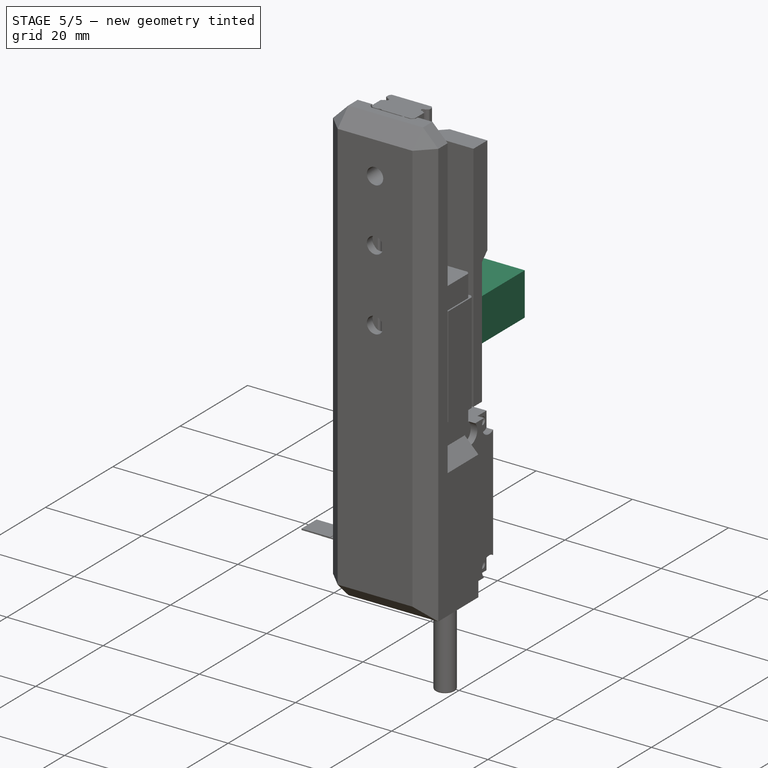
[diagram: stage 5 of 5 — iso view after this stage's code; geometry added in this stage tinted green]
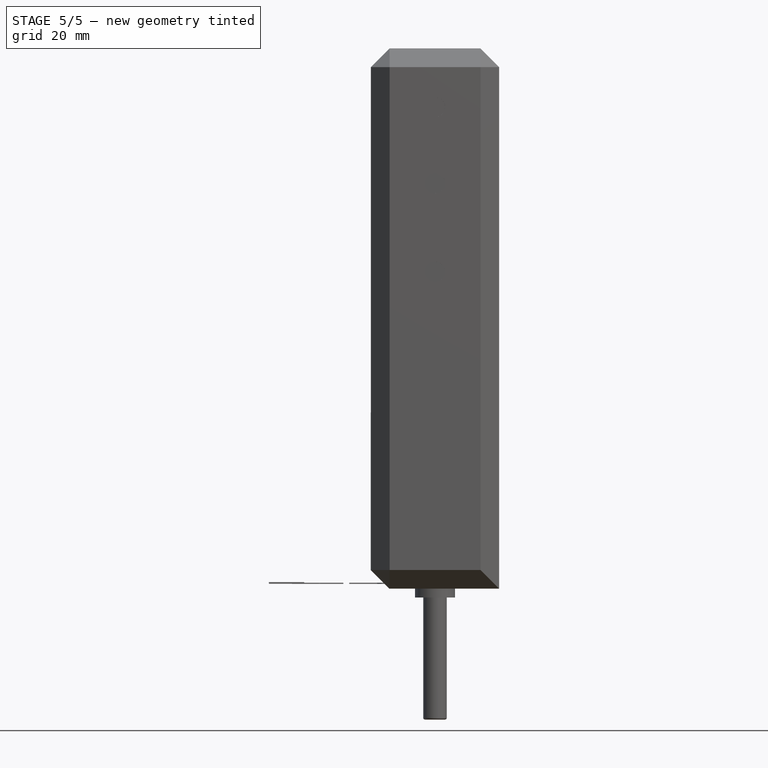
[diagram: stage 5 of 5 — front view after this stage's code; geometry added in this stage tinted green]
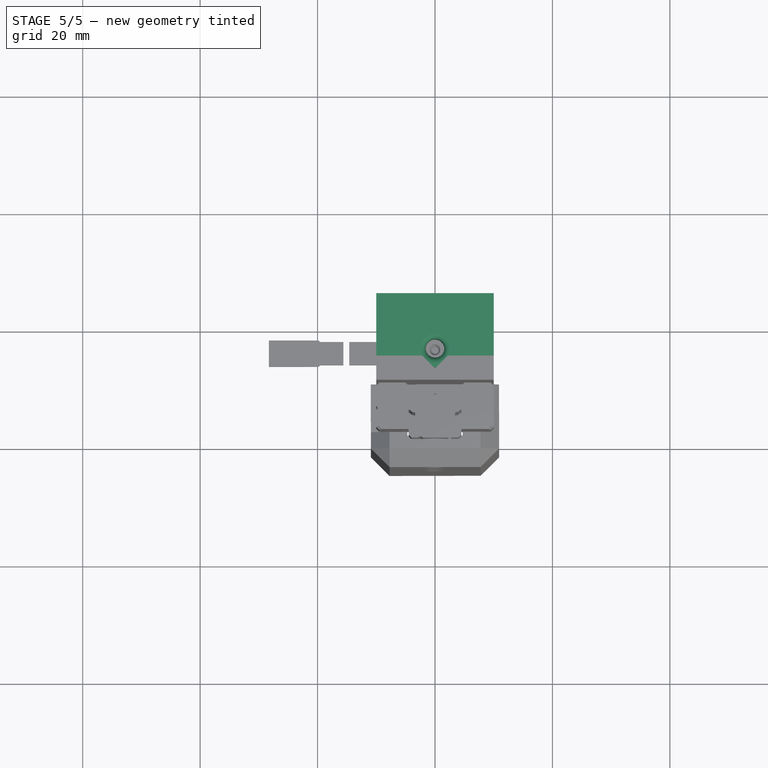
[diagram: stage 5 of 5 — top view after this stage's code; geometry added in this stage tinted green]
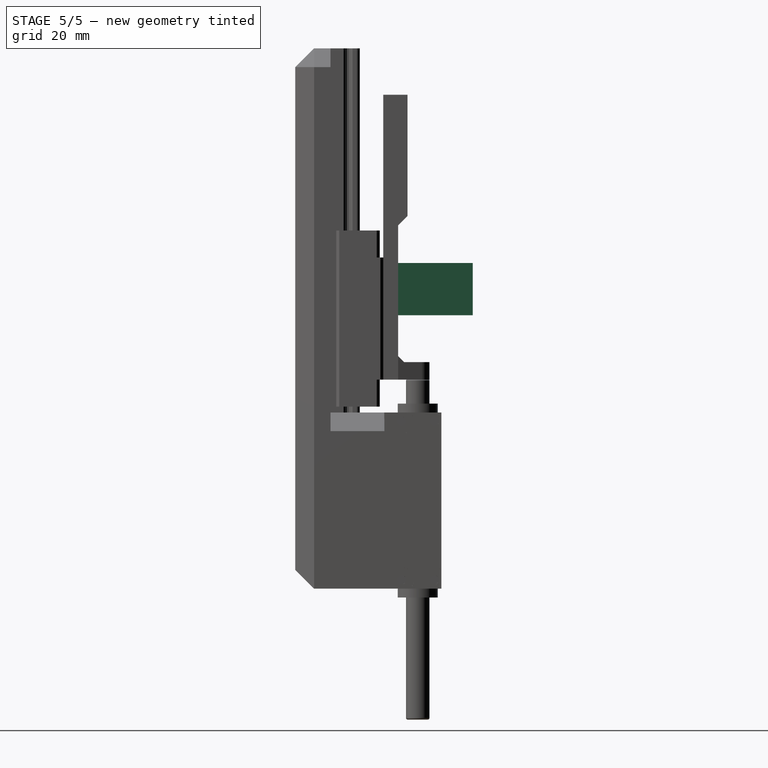
[diagram: stage 5 of 5 — right view after this stage's code; geometry added in this stage tinted green]
FEATURE [Part::Feature] Part__Feature  label="Carriage - 8438K3"
  Placement = pos=(0,0,-45.9996) rot=(0,0,1;0rad)
  shape: bbox 20 x 8.001 x 30 mm, 186 faces (baked)
  expr: .Placement.Base.z = -0.6492 " + 0.0586656 " - 31 mm
FEATURE [Sketcher::SketchObject] Sketch036  label="Spout mount main profile"
  FullyConstrained = true
  MapMode = 5
  Placement = pos=(0,10,-45.9996) rot=(0,0.707107,0.707107;3.14159rad)
  expr: Constraints[10] = 3.4 mm / 2
  expr: Constraints[14] = 15 mm
  expr: Constraints[16] = 10 mm
  expr: Constraints[17] = 5.4 mm
  sketch-geometry (8):
    g0: LineSegment StartX=-9.99998 StartY=12.7 StartZ=0 EndX=9.99998 EndY=12.7 EndZ=0
    g1: LineSegment StartX=9.99998 StartY=12.7 StartZ=0 EndX=9.99998 EndY=-10.3988 EndZ=0
    g2: LineSegment StartX=9.99998 StartY=-10.3988 StartZ=0 EndX=-9.99998 EndY=-10.3988 EndZ=0
    g3: LineSegment StartX=-9.99998 StartY=-10.3988 StartZ=0 EndX=-9.99998 EndY=12.7 EndZ=0
    g4: Circle CenterX=-7.5 CenterY=5.00124 CenterZ=0 NormalX=0 NormalY=0 NormalZ=1 AngleXU=0 Radius=1.7
    g5: Circle CenterX=-7.5 CenterY=-4.99876 CenterZ=0 NormalX=0 NormalY=0 NormalZ=1 AngleXU=0 Radius=1.7
    g6: Circle CenterX=7.5 CenterY=-4.99876 CenterZ=0 NormalX=0 NormalY=0 NormalZ=1 AngleXU=0 Radius=1.7
    g7: Circle CenterX=7.5 CenterY=5.00124 CenterZ=0 NormalX=0 NormalY=0 NormalZ=1 AngleXU=0 Radius=1.7
  constraints (21):
    c: Coincident(g0,g1)
    c: Coincident(g1,g2)
    c: Coincident(g2,g3)
    c: Coincident(g3,g0)
    c: Horizontal(g2)
    c: Vertical(g1)
    c: Vertical(g3)
    c: DistanceX(g0,g0) = 20
    c: Symmetric(g0,g0,g-2)
    c: DistanceY(g2) = -10.3988
    c: Radius(g4) = 1.7
    c: Equal(g4,g5) = 1.7
    c: Symmetric(g4,g7,g-2)
    c: Symmetric(g5,g6,g-2)
    c: DistanceX(g5,g6) = 15
    c: DistanceX(g5,g4) = 0
    c: DistanceY(g5,g4) = 10
    c: DistanceY(g2,g5) = 5.4
    c: Equal(g4,g7)
    c: Equal(g7,g6)
    c: DistanceY(g0) = 12.7
FEATURE [PartDesign::Pad] Pad003
  AllowMultiFace = false
  Direction = (1,1,1)
  Length = 2.54
  Length2 = 99.9998
  Placement = pos=(0,10,-45.9996) rot=(0,0.707107,0.707107;3.14159rad)
  Profile = -> Sketch036
  Type = 0
FEATURE [PartDesign::Body] Body004  label="Linear actuator static mount"
  Group = -> [Sketch044,Sketch045,Sketch046,Sketch047,Pad009,Pocket010,Pocket011,Pocket012,Sketch048,Pad010,Sketch049,Pocket013,Chamfer003]
  Origin = -> Origin011
  Tip = -> Chamfer003
FEATURE [App::Part] Part006  label="Static parts"
  Group = -> [Body004,Part__Feature003]
  Origin = -> Origin010
FEATURE [Sketcher::SketchObject] Sketch051  label="Spout mount main profile001"
  FullyConstrained = true
  MapMode = 5
  Placement = pos=(0,12.54,-45.9996) rot=(0,0.707107,0.707107;3.14159rad)
  Support = -> [Pad003]
  expr: Constraints[10] = 3.4 mm / 2
  expr: Constraints[14] = 15 mm
  expr: Constraints[16] = 10 mm
  expr: Constraints[17] = 5.4 mm
  sketch-geometry (13):
    g0: LineSegment StartX=-9.99998 StartY=12.7 StartZ=0 EndX=9.99998 EndY=12.7 EndZ=0
    g1: LineSegment StartX=9.99998 StartY=12.7 StartZ=0 EndX=9.99998 EndY=-10.3988 EndZ=0
    g2: LineSegment StartX=9.99998 StartY=-10.3988 StartZ=0 EndX=-9.99998 EndY=-10.3988 EndZ=0
    g3: LineSegment StartX=-9.99998 StartY=-10.3988 StartZ=0 EndX=-9.99998 EndY=12.7 EndZ=0
    g4: Circle CenterX=-7.5 CenterY=5.00124 CenterZ=0 NormalX=0 NormalY=0 NormalZ=1 AngleXU=0 Radius=1.7
    g5: Circle CenterX=-7.5 CenterY=-4.99876 CenterZ=0 NormalX=0 NormalY=0 NormalZ=1 AngleXU=0 Radius=1.7
    g6: Circle CenterX=7.5 CenterY=-4.99876 CenterZ=0 NormalX=0 NormalY=0 NormalZ=1 AngleXU=0 Radius=1.7
    g7: Circle CenterX=7.5 CenterY=5.00124 CenterZ=0 NormalX=0 NormalY=0 NormalZ=1 AngleXU=0 Radius=1.7
    g8: LineSegment StartX=-9.99998 StartY=9.44624 StartZ=0 EndX=9.99998 EndY=9.44624 EndZ=0
    g9: LineSegment StartX=9.99998 StartY=9.44624 StartZ=0 EndX=9.99998 EndY=0.55624 EndZ=0
    g10: LineSegment StartX=9.99998 StartY=0.55624 StartZ=0 EndX=-9.99998 EndY=0.55624 EndZ=0
    g11: LineSegment StartX=-9.99998 StartY=0.55624 StartZ=0 EndX=-9.99998 EndY=9.44624 EndZ=0
    g12: LineSegment StartX=-7.5 StartY=5.00124 StartZ=0 EndX=7.5 EndY=5.00124 EndZ=0
  constraints (33):
    c: Coincident(g0,g1)
    c: Coincident(g1,g2)
    c: Coincident(g2,g3)
    c: Coincident(g3,g0)
    c: Horizontal(g2)
    c: Vertical(g1)
    c: Vertical(g3)
    c: DistanceX(g0,g0) = 20
    c: Symmetric(g0,g0,g-2)
    c: DistanceY(g2) = -10.3988
    c: Radius(g4) = 1.7
    c: Equal(g4,g5) = 1.7
    c: Symmetric(g4,g7,g-2)
    c: Symmetric(g5,g6,g-2)
    c: DistanceX(g5,g6) = 15
    c: DistanceX(g5,g4) = 0
    c: DistanceY(g5,g4) = 10
    c: DistanceY(g2,g5) = 5.4
    c: Equal(g4,g7)
    c: Equal(g7,g6)
    c: DistanceY(g0) = 12.7
    c: Coincident(g8,g9)
    c: Coincident(g9,g10)
    c: Coincident(g10,g11)
    c: Coincident(g11,g8)
    c: Horizontal(g10)
    c: Vertical(g11)
    c: Symmetric(g8,g8,g-2)
    c: Coincident(g12,g4)
    c: Coincident(g12,g7)
    c: DistanceX(g8,g0) = 0
    c: Symmetric(g8,g9,g12)
    c: DistanceY(g9,g9) = 8.89
FEATURE [PartDesign::Pad] Pad
  BaseFeature = -> Pad003
  Direction = (1,1,1)
  Length = 12.7
  Length2 = 99.9998
  Placement = pos=(0,10,-45.9996) rot=(0,0.707107,0.707107;3.14159rad)
  Profile = -> Sketch051
  Type = 0
FEATURE [PartDesign::Pad] Pad011
  BaseFeature = -> Pad
  Direction = (0,0,-1)
  Length = 2.975
  Length2 = 99.9998
  Placement = pos=(0,10,-45.9996) rot=(0,0.707107,0.707107;3.14159rad)
  Profile = -> Sketch050
  Reversed = true
  Type = 0
  expr: Length = 0.125 " - 0.2 mm
FEATURE [Sketcher::SketchObject] Sketch  label="Screwdriver access hole"
  FullyConstrained = true
  MapMode = 5
  Placement = pos=(9e-16,10,-36.5533) rot=(0,0,1;0rad)
  Support = -> [Pad011]
  sketch-geometry (1):
    g0: Circle CenterX=0 CenterY=5.87502 CenterZ=0 NormalX=0 NormalY=0 NormalZ=1 AngleXU=0 Radius=1.5875
  constraints (3):
    c: PointOnObject(g0,g-2)
    c: DistanceY(g0) = 5.87502
    c: Diameter(g0) = 3.175
FEATURE [PartDesign::Pocket] Pocket
  BaseFeature = -> Pad011
  Direction = (-2e-16,-2e-16,-1)
  Length = 5
  Length2 = 5
  Placement = pos=(0,10,-45.9996) rot=(0,0.707107,0.707107;3.14159rad)
  Profile = -> Sketch
  ReferenceAxis = -> Sketch [N_Axis]
  Type = 2
FEATURE [PartDesign::Fillet] Fillet
  Base = -> Pocket [Edge49,Edge60,Edge1,Edge2,Edge5,Edge10]
  BaseFeature = -> Pocket
  Placement = pos=(0,10,-45.9996) rot=(0,0.707107,0.707107;3.14159rad)
  Radius = 1.00076
  SupportTransform = false
  UseAllEdges = false
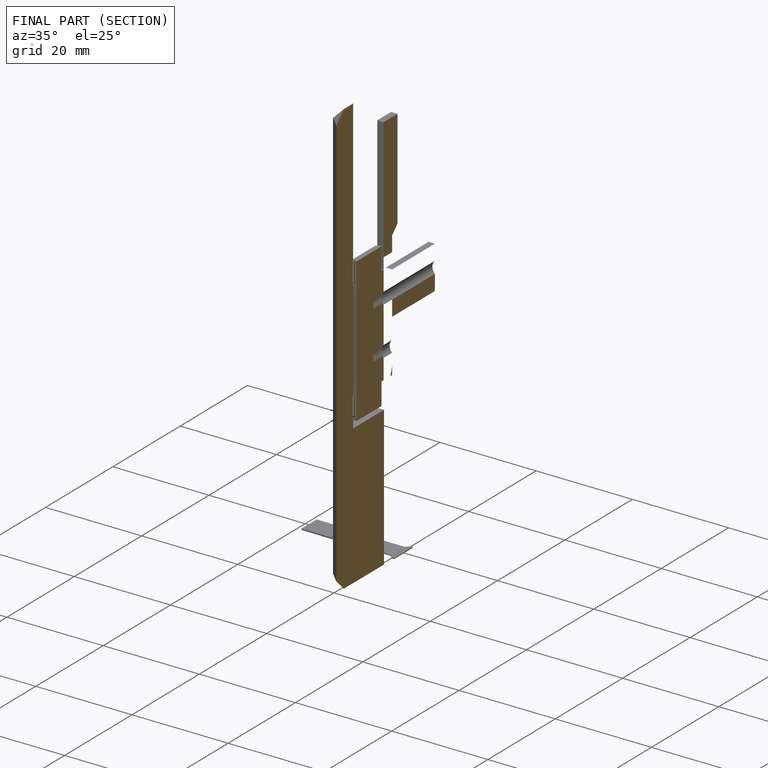
[diagram: finished part — half-section view (interior)]
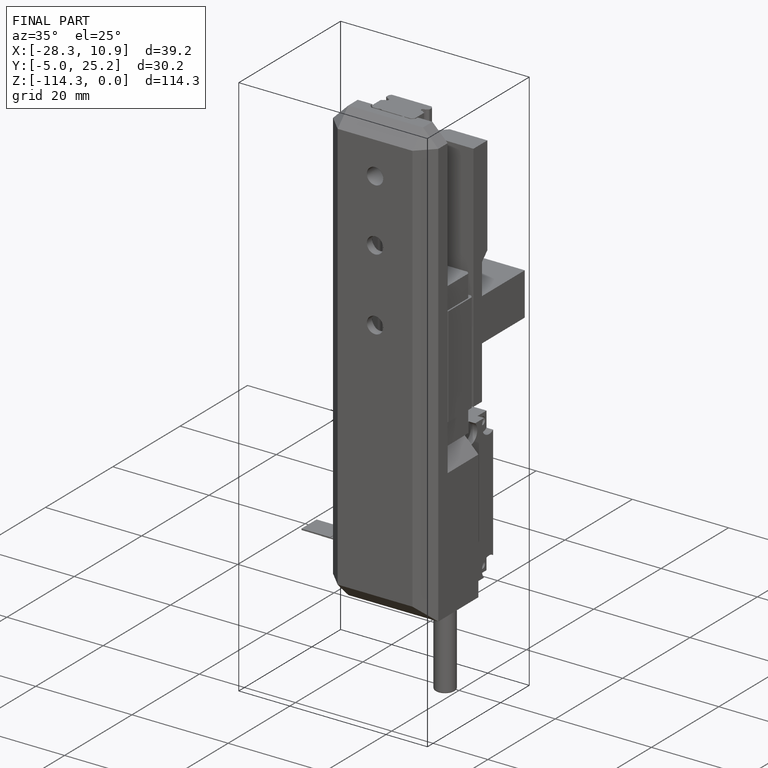
[diagram: finished part — iso view with bounding-box wireframe]
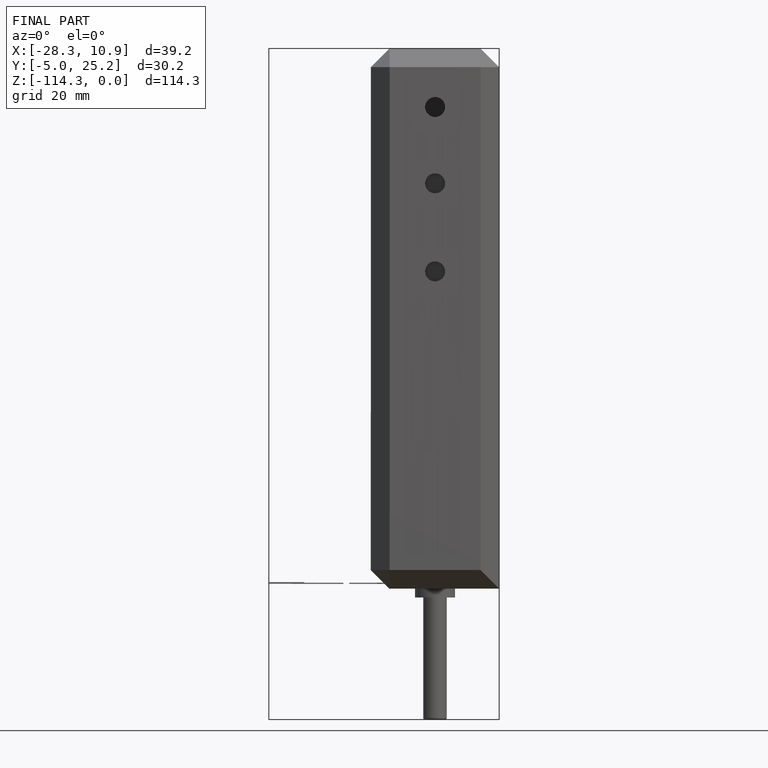
[diagram: finished part — front view with bounding-box wireframe]
